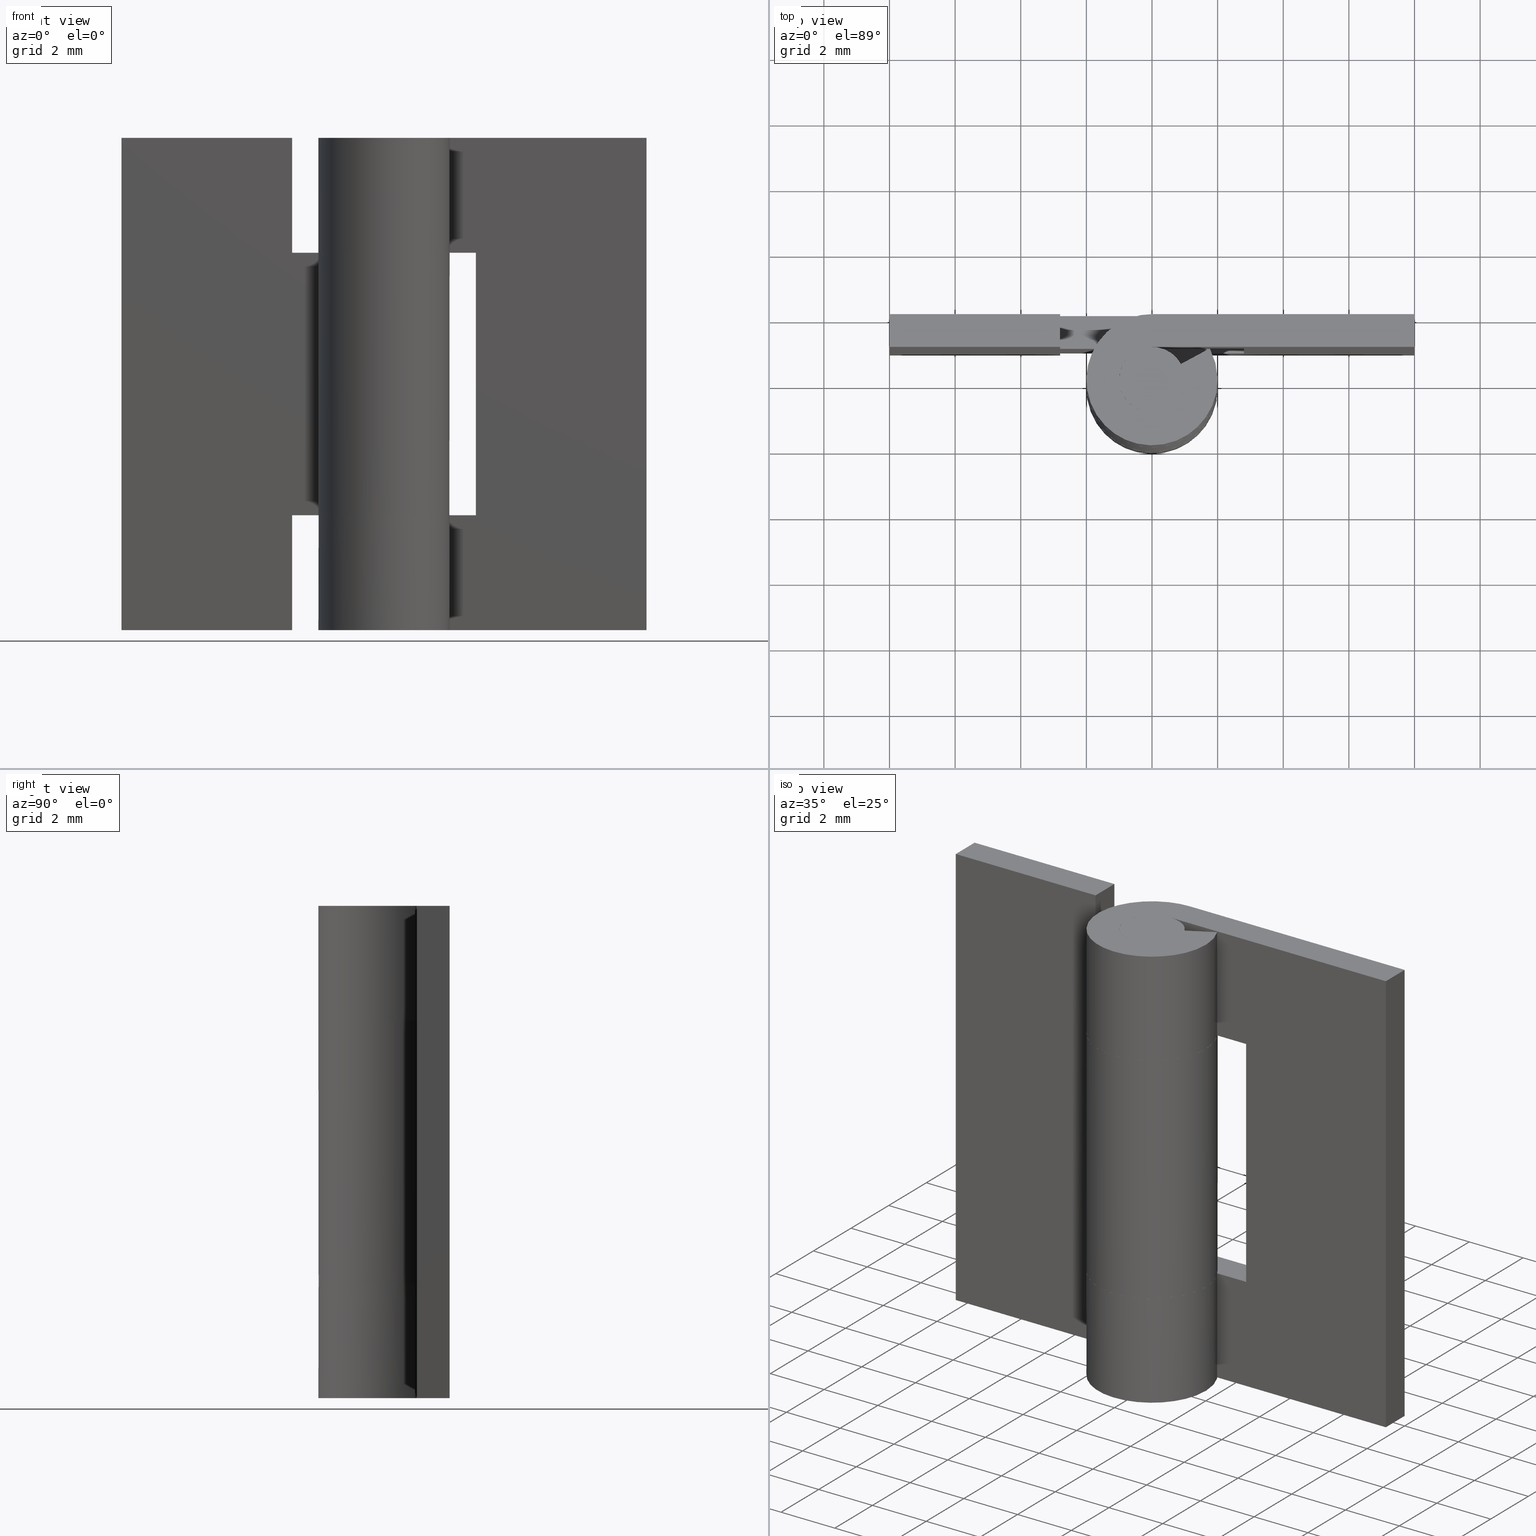
[diagram: canonical four-view strip — front | top / right | iso, engineering-drawing reading convention]
A machine part, canonical four-view strip (front | top / right | iso — engineering-drawing reading convention). The complete STEP part file that produces these views, byte-faithful:
ISO-10303-21;
HEADER;
/****************************************************************
 * Generated by software with PDE/Lib inside                    *
 * PDElib Version 4.4.1-0003, patched  Thursday August 19 11:58 *
 * International Technegroup Inc. (www.iti-oh.com)              *
 ****************************************************************/
FILE_DESCRIPTION((''),'2;1');
FILE_NAME('','2005-04-20T10:57:38',(''),(''),'','CADfix','');
FILE_SCHEMA(('AUTOMOTIVE_DESIGN'));
ENDSEC;
DATA;
#5=APPLICATION_CONTEXT('automotive design');
#6=APPLICATION_PROTOCOL_DEFINITION('Draft International Standard','automotive_design',1998,#5);
#7=PRODUCT_CONTEXT('None',#5,'mechanical');
#8=PRODUCT('hinge piece_B','','None',(#7));
#9=PRODUCT_RELATED_PRODUCT_CATEGORY('part','description',(#8));
#10=PRODUCT_DEFINITION_FORMATION('None','None',#8);
#11=PRODUCT_DEFINITION_CONTEXT('part definition',#5,'design');
#12=PRODUCT_DEFINITION('None','None',#10,#11);
#18=(NAMED_UNIT(*)PLANE_ANGLE_UNIT()SI_UNIT($,.RADIAN.));
#19=DIMENSIONAL_EXPONENTS(0.0,0.0,0.0,0.0,0.0,0.0,0.0);
#20=PLANE_ANGLE_MEASURE_WITH_UNIT(PLANE_ANGLE_MEASURE(0.017453292500000),#18);
#24=(CONVERSION_BASED_UNIT('DEGREE',#20)NAMED_UNIT(#19)PLANE_ANGLE_UNIT());
#28=(NAMED_UNIT(*)SI_UNIT($,.STERADIAN.)SOLID_ANGLE_UNIT());
#32=(LENGTH_UNIT()NAMED_UNIT(*)SI_UNIT(.MILLI.,.METRE.));
#34=UNCERTAINTY_MEASURE_WITH_UNIT(LENGTH_MEASURE(0.001000000000000),#32,'DISTANCE_ACCURACY_VALUE','');
#36=(GEOMETRIC_REPRESENTATION_CONTEXT(3)GLOBAL_UNCERTAINTY_ASSIGNED_CONTEXT((#34))GLOBAL_UNIT_ASSIGNED_CONTEXT((#24,#28,#32))REPRESENTATION_CONTEXT('None','None'));
#37=AXIS2_PLACEMENT_3D('',#38,#39,#40);
#38=CARTESIAN_POINT('',(0.0,0.0,0.0));
#39=DIRECTION('',(0.0,0.0,1.0));
#40=DIRECTION('',(1.0,0.0,0.0));
#41=ADVANCED_BREP_SHAPE_REPRESENTATION('',(#37,#451,#1343),#36);
#42=PRODUCT_DEFINITION_SHAPE('','',#12);
#43=SHAPE_DEFINITION_REPRESENTATION(#42,#41);
#44=CARTESIAN_POINT('',(-2.800003000000000,2.049949998061806,3.674824993216427));
#45=CARTESIAN_POINT('',(-2.800003000000000,2.049949998061806,-0.174825087093641));
#46=CARTESIAN_POINT('',(-2.800003000000000,0.950049975116104,3.674824993216427));
#47=CARTESIAN_POINT('',(-2.800003000000000,0.950049975116104,-0.174825087093641));
#48=B_SPLINE_SURFACE_WITH_KNOTS('',1,1,((#44,#46),(#45,#47)),.UNSPECIFIED.,.F.,.F.,.U.,(2,2),(2,2),(0.0,3.849650080310068),(0.041708334948495,0.958291687403247),.UNSPECIFIED.);
#49=CARTESIAN_POINT('',(-2.800003000000000,1.0,0.0));
#50=VERTEX_POINT('',#49);
#51=CARTESIAN_POINT('',(-2.800003000000000,2.0,0.0));
#52=VERTEX_POINT('',#51);
#53=CARTESIAN_POINT('',(-2.800003000000000,1.0,0.0));
#54=CARTESIAN_POINT('',(-2.800003000000000,2.0,0.0));
#55=QUASI_UNIFORM_CURVE('',1,(#53,#54),.UNSPECIFIED.,.F.,.U.);
#56=EDGE_CURVE('',#50,#52,#55,.T.);
#57=ORIENTED_EDGE('',*,*,#56,.T.);
#58=CARTESIAN_POINT('',(-2.800003000000000,2.0,3.500000000000100));
#59=VERTEX_POINT('',#58);
#60=CARTESIAN_POINT('',(-2.800003000000000,2.0,3.500000000000100));
#61=CARTESIAN_POINT('',(-2.800003000000000,2.0,0.0));
#62=QUASI_UNIFORM_CURVE('',1,(#60,#61),.UNSPECIFIED.,.F.,.U.);
#63=EDGE_CURVE('',#59,#52,#62,.T.);
#64=ORIENTED_EDGE('',*,*,#63,.F.);
#65=CARTESIAN_POINT('',(-2.800003000000000,1.0,3.500000000000100));
#66=VERTEX_POINT('',#65);
#67=CARTESIAN_POINT('',(-2.800003000000000,1.0,3.500000000000100));
#68=CARTESIAN_POINT('',(-2.800003000000000,2.0,3.500000000000100));
#69=QUASI_UNIFORM_CURVE('',1,(#67,#68),.UNSPECIFIED.,.F.,.U.);
#70=EDGE_CURVE('',#66,#59,#69,.T.);
#71=ORIENTED_EDGE('',*,*,#70,.F.);
#72=CARTESIAN_POINT('',(-2.800003000000000,1.0,0.0));
#73=CARTESIAN_POINT('',(-2.800003000000000,1.0,3.500000000000100));
#74=QUASI_UNIFORM_CURVE('',1,(#72,#73),.UNSPECIFIED.,.F.,.U.);
#75=EDGE_CURVE('',#50,#66,#74,.T.);
#76=ORIENTED_EDGE('',*,*,#75,.F.);
#77=EDGE_LOOP('',(#57,#64,#71,#76));
#78=FACE_OUTER_BOUND('',#77,.T.);
#79=ADVANCED_FACE('',(#78),#48,.F.);
#80=CARTESIAN_POINT('',(2.239682554102288,2.199785247893908,3.500000000000100));
#81=CARTESIAN_POINT('',(-3.039759578217170,2.199785247893908,3.500000000000100));
#82=CARTESIAN_POINT('',(2.239682554102288,-2.199490172914328,3.500000000000100));
#83=CARTESIAN_POINT('',(-3.039759578217170,-2.199490172914328,3.500000000000100));
#84=B_SPLINE_SURFACE_WITH_KNOTS('',1,1,((#80,#82),(#81,#83)),.UNSPECIFIED.,.F.,.F.,.U.,(2,2),(2,2),(0.0,5.279442132319458),(0.0,4.399275420808236),.UNSPECIFIED.);
#85=ORIENTED_EDGE('',*,*,#70,.T.);
#86=CARTESIAN_POINT('',(0.0,2.0,3.500000000000100));
#87=VERTEX_POINT('',#86);
#88=CARTESIAN_POINT('',(0.0,2.0,3.500000000000100));
#89=CARTESIAN_POINT('',(-2.800003000000000,2.0,3.500000000000100));
#90=QUASI_UNIFORM_CURVE('',1,(#88,#89),.UNSPECIFIED.,.F.,.U.);
#91=EDGE_CURVE('',#87,#59,#90,.T.);
#92=ORIENTED_EDGE('',*,*,#91,.F.);
#93=CARTESIAN_POINT('',(-1.759971590679805,0.950000000000000,3.500000000000060));
#94=VERTEX_POINT('',#93);
#95=CARTESIAN_POINT('',(0.0,2.0,3.500000000000100));
#96=CARTESIAN_POINT('',(1.523311426391113,2.000000000000000,3.500000000000060));
#97=CARTESIAN_POINT('',(1.928096575312494,0.531454227820452,3.500000000000060));
#98=CARTESIAN_POINT('',(2.332881724233873,-0.937091544359094,3.500000000000060));
#99=CARTESIAN_POINT('',(1.024695076595961,-1.717556403731766,3.500000000000060));
#100=CARTESIAN_POINT('',(-0.283491571041951,-2.498021263104438,3.500000000000060));
#101=CARTESIAN_POINT('',(-1.383518044628767,-1.444256840103794,3.500000000000060));
#102=CARTESIAN_POINT('',(-2.483544518215582,-0.390492417103149,3.500000000000060));
#103=CARTESIAN_POINT('',(-1.759971590679806,0.949999999999997,3.500000000000060));
#111=(BOUNDED_CURVE()B_SPLINE_CURVE(2,(#95,#96,#97,#98,#99,#100,#101,#102,#103),.UNSPECIFIED.,.F.,.U.)B_SPLINE_CURVE_WITH_KNOTS((3,2,2,2,3),(0.0,0.250000000000000,0.500000000000000,0.750000000000000,1.0),.UNSPECIFIED.)CURVE()GEOMETRIC_REPRESENTATION_ITEM()RATIONAL_B_SPLINE_CURVE((1.0,0.795527219493534,1.0,0.795527219493534,1.0,0.795527219493534,1.0,0.795527219493534,1.0))REPRESENTATION_ITEM(''));
#112=EDGE_CURVE('',#87,#94,#111,.T.);
#113=ORIENTED_EDGE('',*,*,#112,.T.);
#114=CARTESIAN_POINT('',(-0.879985795339901,0.475000000000000,3.500000000000060));
#115=VERTEX_POINT('',#114);
#116=CARTESIAN_POINT('',(-0.879985795339901,0.475000000000000,3.500000000000060));
#117=CARTESIAN_POINT('',(-1.759971590679805,0.950000000000000,3.500000000000060));
#118=QUASI_UNIFORM_CURVE('',1,(#116,#117),.UNSPECIFIED.,.F.,.U.);
#119=EDGE_CURVE('',#115,#94,#118,.T.);
#120=ORIENTED_EDGE('',*,*,#119,.F.);
#121=CARTESIAN_POINT('',(-2.220446E-016,1.0,3.500000000000060));
#122=VERTEX_POINT('',#121);
#123=CARTESIAN_POINT('',(0.0,1.0,3.500000000000060));
#124=CARTESIAN_POINT('',(0.761655713195556,1.0,3.500000000000060));
#125=CARTESIAN_POINT('',(0.964048287656247,0.265727113910226,3.500000000000060));
#126=CARTESIAN_POINT('',(1.166440862116937,-0.468545772179548,3.500000000000060));
#127=CARTESIAN_POINT('',(0.512347538297980,-0.858778201865883,3.500000000000060));
#128=CARTESIAN_POINT('',(-0.141745785520977,-1.249010631552219,3.500000000000060));
#129=CARTESIAN_POINT('',(-0.691759022314384,-0.722128420051896,3.500000000000060));
#130=CARTESIAN_POINT('',(-1.241772259107792,-0.195246208551572,3.500000000000060));
#131=CARTESIAN_POINT('',(-0.879985795339902,0.475000000000000,3.500000000000060));
#139=(BOUNDED_CURVE()B_SPLINE_CURVE(2,(#123,#124,#125,#126,#127,#128,#129,#130,#131),.UNSPECIFIED.,.F.,.U.)B_SPLINE_CURVE_WITH_KNOTS((3,2,2,2,3),(0.0,0.250000000000000,0.500000000000000,0.750000000000000,1.0),.UNSPECIFIED.)CURVE()GEOMETRIC_REPRESENTATION_ITEM()RATIONAL_B_SPLINE_CURVE((1.0,0.795527219493534,1.0,0.795527219493534,1.0,0.795527219493534,1.0,0.795527219493534,1.0))REPRESENTATION_ITEM(''));
#140=EDGE_CURVE('',#122,#115,#139,.T.);
#141=ORIENTED_EDGE('',*,*,#140,.F.);
#142=CARTESIAN_POINT('',(-2.800003000000000,1.0,3.500000000000100));
#143=CARTESIAN_POINT('',(-2.220446E-016,1.0,3.500000000000060));
#144=QUASI_UNIFORM_CURVE('',1,(#142,#143),.UNSPECIFIED.,.F.,.U.);
#145=EDGE_CURVE('',#66,#122,#144,.T.);
#146=ORIENTED_EDGE('',*,*,#145,.F.);
#147=EDGE_LOOP('',(#85,#92,#113,#120,#141,#146));
#148=FACE_OUTER_BOUND('',#147,.T.);
#149=ADVANCED_FACE('',(#148),#84,.F.);
#150=CARTESIAN_POINT('',(-2.800003000000000,0.950050001938194,11.325175006783679));
#151=CARTESIAN_POINT('',(-2.800003000000000,0.950050001938194,15.174825087093639));
#152=CARTESIAN_POINT('',(-2.800003000000000,2.049950024883896,11.325175006783679));
#153=CARTESIAN_POINT('',(-2.800003000000000,2.049950024883896,15.174825087093639));
#154=B_SPLINE_SURFACE_WITH_KNOTS('',1,1,((#150,#152),(#151,#153)),.UNSPECIFIED.,.F.,.F.,.U.,(2,2),(2,2),(0.0,3.849650080309958),(0.041708334948495,0.958291687403247),.UNSPECIFIED.);
#155=CARTESIAN_POINT('',(-2.800003000000000,1.0,11.500000000000000));
#156=VERTEX_POINT('',#155);
#157=CARTESIAN_POINT('',(-2.800003000000000,2.0,11.500000000000000));
#158=VERTEX_POINT('',#157);
#159=CARTESIAN_POINT('',(-2.800003000000000,1.0,11.500000000000000));
#160=CARTESIAN_POINT('',(-2.800003000000000,2.0,11.500000000000000));
#161=QUASI_UNIFORM_CURVE('',1,(#159,#160),.UNSPECIFIED.,.F.,.U.);
#162=EDGE_CURVE('',#156,#158,#161,.T.);
#163=ORIENTED_EDGE('',*,*,#162,.T.);
#164=CARTESIAN_POINT('',(-2.800003000000000,2.0,15.0));
#165=VERTEX_POINT('',#164);
#166=CARTESIAN_POINT('',(-2.800003000000000,2.0,11.500000000000000));
#167=CARTESIAN_POINT('',(-2.800003000000000,2.0,15.0));
#168=QUASI_UNIFORM_CURVE('',1,(#166,#167),.UNSPECIFIED.,.F.,.U.);
#169=EDGE_CURVE('',#158,#165,#168,.T.);
#170=ORIENTED_EDGE('',*,*,#169,.T.);
#171=CARTESIAN_POINT('',(-2.800003000000000,1.0,15.0));
#172=VERTEX_POINT('',#171);
#173=CARTESIAN_POINT('',(-2.800003000000000,1.0,15.0));
#174=CARTESIAN_POINT('',(-2.800003000000000,2.0,15.0));
#175=QUASI_UNIFORM_CURVE('',1,(#173,#174),.UNSPECIFIED.,.F.,.U.);
#176=EDGE_CURVE('',#172,#165,#175,.T.);
#177=ORIENTED_EDGE('',*,*,#176,.F.);
#178=CARTESIAN_POINT('',(-2.800003000000000,1.0,11.500000000000000));
#179=CARTESIAN_POINT('',(-2.800003000000000,1.0,15.0));
#180=QUASI_UNIFORM_CURVE('',1,(#178,#179),.UNSPECIFIED.,.F.,.U.);
#181=EDGE_CURVE('',#156,#172,#180,.T.);
#182=ORIENTED_EDGE('',*,*,#181,.F.);
#183=EDGE_LOOP('',(#163,#170,#177,#182));
#184=FACE_OUTER_BOUND('',#183,.T.);
#185=ADVANCED_FACE('',(#184),#154,.F.);
#186=CARTESIAN_POINT('',(2.239682677261474,-2.199489963901460,11.500000000000000));
#187=CARTESIAN_POINT('',(-3.039759584076307,-2.199489963901461,11.500000000000000));
#188=CARTESIAN_POINT('',(2.239682677261474,2.199785350334563,11.500000000000000));
#189=CARTESIAN_POINT('',(-3.039759584076307,2.199785350334563,11.500000000000000));
#190=B_SPLINE_SURFACE_WITH_KNOTS('',1,1,((#186,#188),(#187,#189)),.UNSPECIFIED.,.F.,.F.,.U.,(2,2),(2,2),(0.0,5.279442261337780),(0.0,4.399275314236023),.UNSPECIFIED.);
#191=CARTESIAN_POINT('',(-0.879985795339901,0.475000000000000,11.500000000000000));
#192=VERTEX_POINT('',#191);
#193=CARTESIAN_POINT('',(-2.220446E-016,1.0,11.500000000000000));
#194=VERTEX_POINT('',#193);
#195=CARTESIAN_POINT('',(-0.879985795339902,0.475000000000001,11.500000000000000));
#196=CARTESIAN_POINT('',(-1.241772259107792,-0.195246208551571,11.500000000000000));
#197=CARTESIAN_POINT('',(-0.691759022314385,-0.722128420051895,11.500000000000000));
#198=CARTESIAN_POINT('',(-0.141745785520978,-1.249010631552219,11.500000000000000));
#199=CARTESIAN_POINT('',(0.512347538297979,-0.858778201865884,11.500000000000000));
#200=CARTESIAN_POINT('',(1.166440862116937,-0.468545772179549,11.500000000000000));
#201=CARTESIAN_POINT('',(0.964048287656247,0.265727113910226,11.500000000000000));
#202=CARTESIAN_POINT('',(0.761655713195557,1.0,11.500000000000000));
#203=CARTESIAN_POINT('',(0.0,1.0,11.500000000000000));
#211=(BOUNDED_CURVE()B_SPLINE_CURVE(2,(#195,#196,#197,#198,#199,#200,#201,#202,#203),.UNSPECIFIED.,.F.,.U.)B_SPLINE_CURVE_WITH_KNOTS((3,2,2,2,3),(0.0,0.250000000000000,0.500000000000000,0.750000000000000,1.0),.UNSPECIFIED.)CURVE()GEOMETRIC_REPRESENTATION_ITEM()RATIONAL_B_SPLINE_CURVE((1.0,0.795527219493534,1.0,0.795527219493534,1.0,0.795527219493534,1.0,0.795527219493534,1.0))REPRESENTATION_ITEM(''));
#212=EDGE_CURVE('',#192,#194,#211,.T.);
#213=ORIENTED_EDGE('',*,*,#212,.F.);
#214=CARTESIAN_POINT('',(-1.759971590679805,0.950000000000000,11.500000000000000));
#215=VERTEX_POINT('',#214);
#216=CARTESIAN_POINT('',(-1.759971590679805,0.950000000000000,11.500000000000000));
#217=CARTESIAN_POINT('',(-0.879985795339901,0.475000000000000,11.500000000000000));
#218=QUASI_UNIFORM_CURVE('',1,(#216,#217),.UNSPECIFIED.,.F.,.U.);
#219=EDGE_CURVE('',#215,#192,#218,.T.);
#220=ORIENTED_EDGE('',*,*,#219,.F.);
#221=CARTESIAN_POINT('',(0.0,2.0,11.500000000000000));
#222=VERTEX_POINT('',#221);
#223=CARTESIAN_POINT('',(-1.759971590679804,0.950000000000000,11.500000000000000));
#224=CARTESIAN_POINT('',(-2.483544518215584,-0.390492417103144,11.500000000000002));
#225=CARTESIAN_POINT('',(-1.383518044628769,-1.444256840103792,11.500000000000000));
#226=CARTESIAN_POINT('',(-0.283491571041955,-2.498021263104437,11.500000000000002));
#227=CARTESIAN_POINT('',(1.024695076595959,-1.717556403731767,11.500000000000000));
#228=CARTESIAN_POINT('',(2.332881724233873,-0.937091544359097,11.500000000000002));
#229=CARTESIAN_POINT('',(1.928096575312494,0.531454227820451,11.500000000000000));
#230=CARTESIAN_POINT('',(1.523311426391115,2.000000000000000,11.500000000000002));
#231=CARTESIAN_POINT('',(0.0,2.0,11.500000000000000));
#239=(BOUNDED_CURVE()B_SPLINE_CURVE(2,(#223,#224,#225,#226,#227,#228,#229,#230,#231),.UNSPECIFIED.,.F.,.U.)B_SPLINE_CURVE_WITH_KNOTS((3,2,2,2,3),(0.0,0.250000000000000,0.500000000000000,0.750000000000000,1.0),.UNSPECIFIED.)CURVE()GEOMETRIC_REPRESENTATION_ITEM()RATIONAL_B_SPLINE_CURVE((1.0,0.795527219493534,1.0,0.795527219493534,1.0,0.795527219493534,1.0,0.795527219493534,1.0))REPRESENTATION_ITEM(''));
#240=EDGE_CURVE('',#215,#222,#239,.T.);
#241=ORIENTED_EDGE('',*,*,#240,.T.);
#242=CARTESIAN_POINT('',(0.0,2.0,11.500000000000000));
#243=CARTESIAN_POINT('',(-2.800003000000000,2.0,11.500000000000000));
#244=QUASI_UNIFORM_CURVE('',1,(#242,#243),.UNSPECIFIED.,.F.,.U.);
#245=EDGE_CURVE('',#222,#158,#244,.T.);
#246=ORIENTED_EDGE('',*,*,#245,.T.);
#247=ORIENTED_EDGE('',*,*,#162,.F.);
#248=CARTESIAN_POINT('',(-2.220446E-016,1.0,11.500000000000000));
#249=CARTESIAN_POINT('',(-2.800003000000000,1.0,11.500000000000000));
#250=QUASI_UNIFORM_CURVE('',1,(#248,#249),.UNSPECIFIED.,.F.,.U.);
#251=EDGE_CURVE('',#194,#156,#250,.T.);
#252=ORIENTED_EDGE('',*,*,#251,.F.);
#253=EDGE_LOOP('',(#213,#220,#241,#246,#247,#252));
#254=FACE_OUTER_BOUND('',#253,.T.);
#255=ADVANCED_FACE('',(#254),#190,.F.);
#256=CARTESIAN_POINT('',(-8.259739840071397,0.950050001938194,0.0));
#257=CARTESIAN_POINT('',(-2.540263020453816,0.950050001938194,0.0));
#258=CARTESIAN_POINT('',(-8.259739840071397,2.049950024883896,0.0));
#259=CARTESIAN_POINT('',(-2.540263020453816,2.049950024883896,0.0));
#260=B_SPLINE_SURFACE_WITH_KNOTS('',1,1,((#256,#258),(#257,#259)),.UNSPECIFIED.,.F.,.F.,.U.,(2,2),(2,2),(0.0,5.719476819617581),(0.041708334948495,0.958291687403247),.UNSPECIFIED.);
#261=ORIENTED_EDGE('',*,*,#56,.F.);
#262=CARTESIAN_POINT('',(-8.0,1.0,0.0));
#263=VERTEX_POINT('',#262);
#264=CARTESIAN_POINT('',(-8.0,1.0,0.0));
#265=CARTESIAN_POINT('',(-2.800003000000000,1.0,0.0));
#266=QUASI_UNIFORM_CURVE('',1,(#264,#265),.UNSPECIFIED.,.F.,.U.);
#267=EDGE_CURVE('',#263,#50,#266,.T.);
#268=ORIENTED_EDGE('',*,*,#267,.F.);
#269=CARTESIAN_POINT('',(-8.0,2.0,0.0));
#270=VERTEX_POINT('',#269);
#271=CARTESIAN_POINT('',(-8.0,2.0,0.0));
#272=CARTESIAN_POINT('',(-8.0,1.0,0.0));
#273=QUASI_UNIFORM_CURVE('',1,(#271,#272),.UNSPECIFIED.,.F.,.U.);
#274=EDGE_CURVE('',#270,#263,#273,.T.);
#275=ORIENTED_EDGE('',*,*,#274,.F.);
#276=CARTESIAN_POINT('',(-2.800003000000000,2.0,0.0));
#277=CARTESIAN_POINT('',(-8.0,2.0,0.0));
#278=QUASI_UNIFORM_CURVE('',1,(#276,#277),.UNSPECIFIED.,.F.,.U.);
#279=EDGE_CURVE('',#52,#270,#278,.T.);
#280=ORIENTED_EDGE('',*,*,#279,.F.);
#281=EDGE_LOOP('',(#261,#268,#275,#280));
#282=FACE_OUTER_BOUND('',#281,.T.);
#283=ADVANCED_FACE('',(#282),#260,.F.);
#284=CARTESIAN_POINT('',(-8.259739840071397,0.950050001938194,15.0));
#285=CARTESIAN_POINT('',(-2.540263020453816,0.950050001938194,15.0));
#286=CARTESIAN_POINT('',(-8.259739840071397,2.049950024883896,15.0));
#287=CARTESIAN_POINT('',(-2.540263020453816,2.049950024883896,15.0));
#288=B_SPLINE_SURFACE_WITH_KNOTS('',1,1,((#284,#286),(#285,#287)),.UNSPECIFIED.,.F.,.F.,.U.,(2,2),(2,2),(0.0,5.719476819617581),(0.041708334948495,0.958291687403247),.UNSPECIFIED.);
#289=CARTESIAN_POINT('',(-8.0,1.0,15.0));
#290=VERTEX_POINT('',#289);
#291=CARTESIAN_POINT('',(-8.0,1.0,15.0));
#292=CARTESIAN_POINT('',(-2.800003000000000,1.0,15.0));
#293=QUASI_UNIFORM_CURVE('',1,(#291,#292),.UNSPECIFIED.,.F.,.U.);
#294=EDGE_CURVE('',#290,#172,#293,.T.);
#295=ORIENTED_EDGE('',*,*,#294,.T.);
#296=ORIENTED_EDGE('',*,*,#176,.T.);
#297=CARTESIAN_POINT('',(-8.0,2.0,15.0));
#298=VERTEX_POINT('',#297);
#299=CARTESIAN_POINT('',(-2.800003000000000,2.0,15.0));
#300=CARTESIAN_POINT('',(-8.0,2.0,15.0));
#301=QUASI_UNIFORM_CURVE('',1,(#299,#300),.UNSPECIFIED.,.F.,.U.);
#302=EDGE_CURVE('',#165,#298,#301,.T.);
#303=ORIENTED_EDGE('',*,*,#302,.T.);
#304=CARTESIAN_POINT('',(-8.0,2.0,15.0));
#305=CARTESIAN_POINT('',(-8.0,1.0,15.0));
#306=QUASI_UNIFORM_CURVE('',1,(#304,#305),.UNSPECIFIED.,.F.,.U.);
#307=EDGE_CURVE('',#298,#290,#306,.T.);
#308=ORIENTED_EDGE('',*,*,#307,.T.);
#309=EDGE_LOOP('',(#295,#296,#303,#308));
#310=FACE_OUTER_BOUND('',#309,.T.);
#311=ADVANCED_FACE('',(#310),#288,.T.);
#312=CARTESIAN_POINT('',(-1.723258320883051,1.015076725921408,11.699999999999999));
#313=CARTESIAN_POINT('',(-1.723258320883051,1.015076725921408,3.295000000000060));
#314=CARTESIAN_POINT('',(-2.969344769301742,-1.100358281051034,11.700000000000001));
#315=CARTESIAN_POINT('',(-2.969344769301742,-1.100358281051034,3.295000000000061));
#316=CARTESIAN_POINT('',(-0.645632757753657,-1.892923226682848,11.699999999999999));
#317=CARTESIAN_POINT('',(-0.645632757753657,-1.892923226682848,3.295000000000060));
#318=CARTESIAN_POINT('',(1.678079253794428,-2.685488172314661,11.700000000000001));
#319=CARTESIAN_POINT('',(1.678079253794428,-2.685488172314661,3.295000000000061));
#320=CARTESIAN_POINT('',(1.984374898665018,-0.249512046899941,11.699999999999999));
#321=CARTESIAN_POINT('',(1.984374898665018,-0.249512046899941,3.295000000000060));
#322=CARTESIAN_POINT('',(2.290670543535608,2.186464078514781,11.700000000000001));
#323=CARTESIAN_POINT('',(2.290670543535608,2.186464078514781,3.295000000000061));
#324=CARTESIAN_POINT('',(-0.156918191455691,1.993834667466256,11.699999999999999));
#325=CARTESIAN_POINT('',(-0.156918191455691,1.993834667466256,3.295000000000060));
#333=(BOUNDED_SURFACE()B_SPLINE_SURFACE(1,2,((#312,#314,#316,#318,#320,#322,#324),(#313,#315,#317,#319,#321,#323,#325)),.UNSPECIFIED.,.F.,.F.,.U.)B_SPLINE_SURFACE_WITH_KNOTS((2,2),(3,2,2,3),(0.0,8.404999999999941),(0.0,3.801531476131832,7.603062952263665,11.404594428395500),.UNSPECIFIED.)GEOMETRIC_REPRESENTATION_ITEM()RATIONAL_B_SPLINE_SURFACE(((1.0,0.631578351302498,1.0,0.631578351302498,1.0,0.631578351302498,1.0),(1.0,0.631578351302498,1.0,0.631578351302498,1.0,0.631578351302498,1.0)))REPRESENTATION_ITEM('')SURFACE());
#334=CARTESIAN_POINT('',(-1.759971590679805,0.950000000000000,11.500000000000000));
#335=CARTESIAN_POINT('',(-1.759971590679805,0.950000000000000,3.500000000000060));
#336=QUASI_UNIFORM_CURVE('',1,(#334,#335),.UNSPECIFIED.,.F.,.U.);
#337=EDGE_CURVE('',#215,#94,#336,.T.);
#338=ORIENTED_EDGE('',*,*,#337,.T.);
#339=ORIENTED_EDGE('',*,*,#112,.F.);
#340=CARTESIAN_POINT('',(0.0,2.0,11.500000000000000));
#341=CARTESIAN_POINT('',(0.0,2.0,3.500000000000100));
#342=QUASI_UNIFORM_CURVE('',1,(#340,#341),.UNSPECIFIED.,.F.,.U.);
#343=EDGE_CURVE('',#222,#87,#342,.T.);
#344=ORIENTED_EDGE('',*,*,#343,.F.);
#345=ORIENTED_EDGE('',*,*,#240,.F.);
#346=EDGE_LOOP('',(#338,#339,#344,#345));
#347=FACE_OUTER_BOUND('',#346,.T.);
#348=ADVANCED_FACE('',(#347),#333,.T.);
#349=CARTESIAN_POINT('',(-1.803926895972804,0.973726257997279,3.100400015505615));
#350=CARTESIAN_POINT('',(-0.836030482179216,0.451273737755891,3.100400015505615));
#351=CARTESIAN_POINT('',(-1.803926895972804,0.973726257997279,11.899600199071170));
#352=CARTESIAN_POINT('',(-0.836030482179216,0.451273737755891,11.899600199071170));
#353=B_SPLINE_SURFACE_WITH_KNOTS('',1,1,((#349,#351),(#350,#352)),.UNSPECIFIED.,.F.,.F.,.U.,(2,2),(2,2),(0.041708319303021,0.958291688147560),(0.0,8.799200183565555),.UNSPECIFIED.);
#354=CARTESIAN_POINT('',(-0.879985795339901,0.475000000000000,11.500000000000000));
#355=CARTESIAN_POINT('',(-0.879985795339901,0.475000000000000,3.500000000000060));
#356=QUASI_UNIFORM_CURVE('',1,(#354,#355),.UNSPECIFIED.,.F.,.U.);
#357=EDGE_CURVE('',#192,#115,#356,.T.);
#358=ORIENTED_EDGE('',*,*,#357,.T.);
#359=ORIENTED_EDGE('',*,*,#119,.T.);
#360=ORIENTED_EDGE('',*,*,#337,.F.);
#361=ORIENTED_EDGE('',*,*,#219,.T.);
#362=EDGE_LOOP('',(#358,#359,#360,#361));
#363=FACE_OUTER_BOUND('',#362,.T.);
#364=ADVANCED_FACE('',(#363),#353,.F.);
#365=CARTESIAN_POINT('',(-0.861629160441525,0.507538362960704,11.699999999999999));
#366=CARTESIAN_POINT('',(-0.861629160441525,0.507538362960704,3.295000000000060));
#367=CARTESIAN_POINT('',(-1.484672384650871,-0.550179140525518,11.700000000000001));
#368=CARTESIAN_POINT('',(-1.484672384650871,-0.550179140525518,3.295000000000061));
#369=CARTESIAN_POINT('',(-0.322816378876828,-0.946461613341424,11.699999999999999));
#370=CARTESIAN_POINT('',(-0.322816378876828,-0.946461613341424,3.295000000000060));
#371=CARTESIAN_POINT('',(0.839039626897214,-1.342744086157331,11.700000000000001));
#372=CARTESIAN_POINT('',(0.839039626897214,-1.342744086157331,3.295000000000061));
#373=CARTESIAN_POINT('',(0.992187449332509,-0.124756023449970,11.699999999999999));
#374=CARTESIAN_POINT('',(0.992187449332509,-0.124756023449970,3.295000000000060));
#375=CARTESIAN_POINT('',(1.145335271767804,1.093232039257391,11.700000000000001));
#376=CARTESIAN_POINT('',(1.145335271767804,1.093232039257391,3.295000000000061));
#377=CARTESIAN_POINT('',(-0.078459095727846,0.996917333733128,11.699999999999999));
#378=CARTESIAN_POINT('',(-0.078459095727846,0.996917333733128,3.295000000000060));
#386=(BOUNDED_SURFACE()B_SPLINE_SURFACE(1,2,((#365,#367,#369,#371,#373,#375,#377),(#366,#368,#370,#372,#374,#376,#378)),.UNSPECIFIED.,.F.,.F.,.U.)B_SPLINE_SURFACE_WITH_KNOTS((2,2),(3,2,2,3),(0.0,8.404999999999941),(0.0,1.0,2.0,3.0),.UNSPECIFIED.)GEOMETRIC_REPRESENTATION_ITEM()RATIONAL_B_SPLINE_SURFACE(((1.0,0.631578351302498,1.0,0.631578351302498,1.0,0.631578351302498,1.0),(1.0,0.631578351302498,1.0,0.631578351302498,1.0,0.631578351302498,1.0)))REPRESENTATION_ITEM('')SURFACE());
#387=CARTESIAN_POINT('',(-2.220446E-016,1.0,11.500000000000000));
#388=CARTESIAN_POINT('',(-2.220446E-016,1.0,3.500000000000060));
#389=QUASI_UNIFORM_CURVE('',1,(#387,#388),.UNSPECIFIED.,.F.,.U.);
#390=EDGE_CURVE('',#194,#122,#389,.T.);
#391=ORIENTED_EDGE('',*,*,#390,.T.);
#392=ORIENTED_EDGE('',*,*,#140,.T.);
#393=ORIENTED_EDGE('',*,*,#357,.F.);
#394=ORIENTED_EDGE('',*,*,#212,.T.);
#395=EDGE_LOOP('',(#391,#392,#393,#394));
#396=FACE_OUTER_BOUND('',#395,.T.);
#397=ADVANCED_FACE('',(#396),#386,.F.);
#398=CARTESIAN_POINT('',(-8.399599984494447,1.0,-0.749249970927090));
#399=CARTESIAN_POINT('',(-8.399599984494447,1.0,15.749250373258439));
#400=CARTESIAN_POINT('',(0.399600199071168,1.0,-0.749249970927090));
#401=CARTESIAN_POINT('',(0.399600199071168,1.0,15.749250373258439));
#402=B_SPLINE_SURFACE_WITH_KNOTS('',1,1,((#398,#400),(#399,#401)),.UNSPECIFIED.,.F.,.F.,.U.,(2,2),(2,2),(0.0,16.498500344185530),(0.0,8.799200183565615),.UNSPECIFIED.);
#403=ORIENTED_EDGE('',*,*,#75,.T.);
#404=ORIENTED_EDGE('',*,*,#145,.T.);
#405=ORIENTED_EDGE('',*,*,#390,.F.);
#406=ORIENTED_EDGE('',*,*,#251,.T.);
#407=ORIENTED_EDGE('',*,*,#181,.T.);
#408=ORIENTED_EDGE('',*,*,#294,.F.);
#409=CARTESIAN_POINT('',(-8.0,1.0,15.0));
#410=CARTESIAN_POINT('',(-8.0,1.0,0.0));
#411=QUASI_UNIFORM_CURVE('',1,(#409,#410),.UNSPECIFIED.,.F.,.U.);
#412=EDGE_CURVE('',#290,#263,#411,.T.);
#413=ORIENTED_EDGE('',*,*,#412,.T.);
#414=ORIENTED_EDGE('',*,*,#267,.T.);
#415=EDGE_LOOP('',(#403,#404,#405,#406,#407,#408,#413,#414));
#416=FACE_OUTER_BOUND('',#415,.T.);
#417=ADVANCED_FACE('',(#416),#402,.F.);
#418=CARTESIAN_POINT('',(-8.0,0.950050001938194,15.749249970927091));
#419=CARTESIAN_POINT('',(-8.0,0.950050001938194,-0.749250373258442));
#420=CARTESIAN_POINT('',(-8.0,2.049950024883896,15.749249970927091));
#421=CARTESIAN_POINT('',(-8.0,2.049950024883896,-0.749250373258442));
#422=B_SPLINE_SURFACE_WITH_KNOTS('',1,1,((#418,#420),(#419,#421)),.UNSPECIFIED.,.F.,.F.,.U.,(2,2),(2,2),(0.0,16.498500344185530),(0.041708334948495,0.958291687403247),.UNSPECIFIED.);
#423=ORIENTED_EDGE('',*,*,#274,.T.);
#424=ORIENTED_EDGE('',*,*,#412,.F.);
#425=ORIENTED_EDGE('',*,*,#307,.F.);
#426=CARTESIAN_POINT('',(-8.0,2.0,15.0));
#427=CARTESIAN_POINT('',(-8.0,2.0,0.0));
#428=QUASI_UNIFORM_CURVE('',1,(#426,#427),.UNSPECIFIED.,.F.,.U.);
#429=EDGE_CURVE('',#298,#270,#428,.T.);
#430=ORIENTED_EDGE('',*,*,#429,.T.);
#431=EDGE_LOOP('',(#423,#424,#425,#430));
#432=FACE_OUTER_BOUND('',#431,.T.);
#433=ADVANCED_FACE('',(#432),#422,.F.);
#434=CARTESIAN_POINT('',(-8.399599984494447,2.0,15.749249970927091));
#435=CARTESIAN_POINT('',(-8.399599984494447,2.0,-0.749250373258442));
#436=CARTESIAN_POINT('',(0.399600199071169,2.0,15.749249970927091));
#437=CARTESIAN_POINT('',(0.399600199071169,2.0,-0.749250373258442));
#438=B_SPLINE_SURFACE_WITH_KNOTS('',1,1,((#434,#436),(#435,#437)),.UNSPECIFIED.,.F.,.F.,.U.,(2,2),(2,2),(0.0,16.498500344185530),(0.0,8.799200183565615),.UNSPECIFIED.);
#439=ORIENTED_EDGE('',*,*,#343,.T.);
#440=ORIENTED_EDGE('',*,*,#91,.T.);
#441=ORIENTED_EDGE('',*,*,#63,.T.);
#442=ORIENTED_EDGE('',*,*,#279,.T.);
#443=ORIENTED_EDGE('',*,*,#429,.F.);
#444=ORIENTED_EDGE('',*,*,#302,.F.);
#445=ORIENTED_EDGE('',*,*,#169,.F.);
#446=ORIENTED_EDGE('',*,*,#245,.F.);
#447=EDGE_LOOP('',(#439,#440,#441,#442,#443,#444,#445,#446));
#448=FACE_OUTER_BOUND('',#447,.T.);
#449=ADVANCED_FACE('',(#448),#438,.F.);
#450=CLOSED_SHELL('',(#79,#149,#185,#255,#283,#311,#348,#364,#397,#417,#433,#449));
#451=MANIFOLD_SOLID_BREP('hinge piece_B',#450);
#452=APPLICATION_CONTEXT('automotive design');
#453=APPLICATION_PROTOCOL_DEFINITION('Draft International Standard','automotive_design',1998,#452);
#454=PRODUCT_CONTEXT('None',#452,'mechanical');
#455=PRODUCT('hinge piece_A','','None',(#454));
#456=PRODUCT_RELATED_PRODUCT_CATEGORY('part','description',(#455));
#457=PRODUCT_DEFINITION_FORMATION('None','None',#455);
#458=PRODUCT_DEFINITION_CONTEXT('part definition',#452,'design');
#459=PRODUCT_DEFINITION('None','None',#457,#458);
#465=(NAMED_UNIT(*)PLANE_ANGLE_UNIT()SI_UNIT($,.RADIAN.));
#466=DIMENSIONAL_EXPONENTS(0.0,0.0,0.0,0.0,0.0,0.0,0.0);
#467=PLANE_ANGLE_MEASURE_WITH_UNIT(PLANE_ANGLE_MEASURE(0.017453292500000),#465);
#471=(CONVERSION_BASED_UNIT('DEGREE',#467)NAMED_UNIT(#466)PLANE_ANGLE_UNIT());
#475=(NAMED_UNIT(*)SI_UNIT($,.STERADIAN.)SOLID_ANGLE_UNIT());
#479=(LENGTH_UNIT()NAMED_UNIT(*)SI_UNIT(.MILLI.,.METRE.));
#481=UNCERTAINTY_MEASURE_WITH_UNIT(LENGTH_MEASURE(0.001000000000000),#479,'DISTANCE_ACCURACY_VALUE','');
#483=(GEOMETRIC_REPRESENTATION_CONTEXT(3)GLOBAL_UNCERTAINTY_ASSIGNED_CONTEXT((#481))GLOBAL_UNIT_ASSIGNED_CONTEXT((#471,#475,#479))REPRESENTATION_CONTEXT('None','None'));
#484=AXIS2_PLACEMENT_3D('',#485,#486,#487);
#485=CARTESIAN_POINT('',(0.0,0.0,0.0));
#486=DIRECTION('',(0.0,0.0,1.0));
#487=DIRECTION('',(1.0,0.0,0.0));
#488=ADVANCED_BREP_SHAPE_REPRESENTATION('',(#484,#1048,#1359),#483);
#489=PRODUCT_DEFINITION_SHAPE('','',#459);
#490=SHAPE_DEFINITION_REPRESENTATION(#489,#488);
#491=CARTESIAN_POINT('',(2.800003000000000,0.950050001938194,11.899599984494451));
#492=CARTESIAN_POINT('',(2.800003000000000,0.950050001938194,3.100399800928831));
#493=CARTESIAN_POINT('',(2.800003000000000,2.049950024883896,11.899599984494451));
#494=CARTESIAN_POINT('',(2.800003000000000,2.049950024883896,3.100399800928831));
#495=B_SPLINE_SURFACE_WITH_KNOTS('',1,1,((#491,#493),(#492,#494)),.UNSPECIFIED.,.F.,.F.,.U.,(2,2),(2,2),(0.0,8.799200183565617),(0.041708334948495,0.958291687403247),.UNSPECIFIED.);
#496=CARTESIAN_POINT('',(2.800003000000000,1.0,3.500000000000000));
#497=VERTEX_POINT('',#496);
#498=CARTESIAN_POINT('',(2.800003000000000,1.0,11.500000000000000));
#499=VERTEX_POINT('',#498);
#500=CARTESIAN_POINT('',(2.800003000000000,1.0,3.500000000000000));
#501=CARTESIAN_POINT('',(2.800003000000000,1.0,11.500000000000000));
#502=QUASI_UNIFORM_CURVE('',1,(#500,#501),.UNSPECIFIED.,.F.,.U.);
#503=EDGE_CURVE('',#497,#499,#502,.T.);
#504=ORIENTED_EDGE('',*,*,#503,.T.);
#505=CARTESIAN_POINT('',(2.800003000000000,2.0,11.500000000000000));
#506=VERTEX_POINT('',#505);
#507=CARTESIAN_POINT('',(2.800003000000000,1.0,11.500000000000000));
#508=CARTESIAN_POINT('',(2.800003000000000,2.0,11.500000000000000));
#509=QUASI_UNIFORM_CURVE('',1,(#507,#508),.UNSPECIFIED.,.F.,.U.);
#510=EDGE_CURVE('',#499,#506,#509,.T.);
#511=ORIENTED_EDGE('',*,*,#510,.T.);
#512=CARTESIAN_POINT('',(2.800003000000000,2.0,3.500000000000000));
#513=VERTEX_POINT('',#512);
#514=CARTESIAN_POINT('',(2.800003000000000,2.0,11.500000000000000));
#515=CARTESIAN_POINT('',(2.800003000000000,2.0,3.500000000000000));
#516=QUASI_UNIFORM_CURVE('',1,(#514,#515),.UNSPECIFIED.,.F.,.U.);
#517=EDGE_CURVE('',#506,#513,#516,.T.);
#518=ORIENTED_EDGE('',*,*,#517,.T.);
#519=CARTESIAN_POINT('',(2.800003000000000,1.0,3.500000000000000));
#520=CARTESIAN_POINT('',(2.800003000000000,2.0,3.500000000000000));
#521=QUASI_UNIFORM_CURVE('',1,(#519,#520),.UNSPECIFIED.,.F.,.U.);
#522=EDGE_CURVE('',#497,#513,#521,.T.);
#523=ORIENTED_EDGE('',*,*,#522,.F.);
#524=EDGE_LOOP('',(#504,#511,#518,#523));
#525=FACE_OUTER_BOUND('',#524,.T.);
#526=ADVANCED_FACE('',(#525),#495,.F.);
#527=CARTESIAN_POINT('',(-2.239682677261474,-2.199489963901460,11.500000000000000));
#528=CARTESIAN_POINT('',(3.039759584076307,-2.199489963901461,11.500000000000000));
#529=CARTESIAN_POINT('',(-2.239682677261474,2.199785350334563,11.500000000000000));
#530=CARTESIAN_POINT('',(3.039759584076307,2.199785350334563,11.500000000000000));
#531=B_SPLINE_SURFACE_WITH_KNOTS('',1,1,((#527,#529),(#528,#530)),.UNSPECIFIED.,.F.,.F.,.U.,(2,2),(2,2),(0.0,5.279442261337780),(0.0,4.399275314236023),.UNSPECIFIED.);
#532=CARTESIAN_POINT('',(1.759971590679805,0.950000000000000,11.500000000000000));
#533=VERTEX_POINT('',#532);
#534=CARTESIAN_POINT('',(0.0,2.0,11.500000000000000));
#535=VERTEX_POINT('',#534);
#536=CARTESIAN_POINT('',(1.759971590679804,0.950000000000000,11.500000000000000));
#537=CARTESIAN_POINT('',(2.483544518215584,-0.390492417103144,11.500000000000002));
#538=CARTESIAN_POINT('',(1.383518044628769,-1.444256840103792,11.500000000000000));
#539=CARTESIAN_POINT('',(0.283491571041955,-2.498021263104437,11.500000000000002));
#540=CARTESIAN_POINT('',(-1.024695076595959,-1.717556403731767,11.500000000000000));
#541=CARTESIAN_POINT('',(-2.332881724233873,-0.937091544359097,11.500000000000002));
#542=CARTESIAN_POINT('',(-1.928096575312494,0.531454227820451,11.500000000000000));
#543=CARTESIAN_POINT('',(-1.523311426391115,2.000000000000000,11.500000000000002));
#544=CARTESIAN_POINT('',(0.0,2.0,11.500000000000000));
#552=(BOUNDED_CURVE()B_SPLINE_CURVE(2,(#536,#537,#538,#539,#540,#541,#542,#543,#544),.UNSPECIFIED.,.F.,.U.)B_SPLINE_CURVE_WITH_KNOTS((3,2,2,2,3),(0.0,0.250000000000000,0.500000000000000,0.750000000000000,1.0),.UNSPECIFIED.)CURVE()GEOMETRIC_REPRESENTATION_ITEM()RATIONAL_B_SPLINE_CURVE((1.0,0.795527219493534,1.0,0.795527219493534,1.0,0.795527219493534,1.0,0.795527219493534,1.0))REPRESENTATION_ITEM(''));
#553=EDGE_CURVE('',#533,#535,#552,.T.);
#554=ORIENTED_EDGE('',*,*,#553,.T.);
#555=CARTESIAN_POINT('',(0.0,2.0,11.500000000000000));
#556=CARTESIAN_POINT('',(2.800003000000000,2.0,11.500000000000000));
#557=QUASI_UNIFORM_CURVE('',1,(#555,#556),.UNSPECIFIED.,.F.,.U.);
#558=EDGE_CURVE('',#535,#506,#557,.T.);
#559=ORIENTED_EDGE('',*,*,#558,.T.);
#560=ORIENTED_EDGE('',*,*,#510,.F.);
#561=CARTESIAN_POINT('',(0.0,1.0,11.500000000000000));
#562=VERTEX_POINT('',#561);
#563=CARTESIAN_POINT('',(2.800003000000000,1.0,11.500000000000000));
#564=CARTESIAN_POINT('',(0.0,1.0,11.500000000000000));
#565=QUASI_UNIFORM_CURVE('',1,(#563,#564),.UNSPECIFIED.,.F.,.U.);
#566=EDGE_CURVE('',#499,#562,#565,.T.);
#567=ORIENTED_EDGE('',*,*,#566,.T.);
#568=CARTESIAN_POINT('',(0.879985795339902,0.475000000000000,11.500000000000000));
#569=VERTEX_POINT('',#568);
#570=CARTESIAN_POINT('',(0.879985795339902,0.475000000000000,11.500000000000000));
#571=CARTESIAN_POINT('',(1.241772259107792,-0.195246208551572,11.500000000000002));
#572=CARTESIAN_POINT('',(0.691759022314384,-0.722128420051896,11.500000000000000));
#573=CARTESIAN_POINT('',(0.141745785520978,-1.249010631552219,11.500000000000002));
#574=CARTESIAN_POINT('',(-0.512347538297979,-0.858778201865884,11.500000000000000));
#575=CARTESIAN_POINT('',(-1.166440862116937,-0.468545772179548,11.500000000000002));
#576=CARTESIAN_POINT('',(-0.964048287656247,0.265727113910226,11.500000000000000));
#577=CARTESIAN_POINT('',(-0.761655713195557,1.0,11.500000000000002));
#578=CARTESIAN_POINT('',(0.0,1.0,11.500000000000000));
#586=(BOUNDED_CURVE()B_SPLINE_CURVE(2,(#570,#571,#572,#573,#574,#575,#576,#577,#578),.UNSPECIFIED.,.F.,.U.)B_SPLINE_CURVE_WITH_KNOTS((3,2,2,2,3),(0.0,0.250000000000000,0.500000000000000,0.750000000000000,1.0),.UNSPECIFIED.)CURVE()GEOMETRIC_REPRESENTATION_ITEM()RATIONAL_B_SPLINE_CURVE((1.0,0.795527219493534,1.0,0.795527219493534,1.0,0.795527219493534,1.0,0.795527219493534,1.0))REPRESENTATION_ITEM(''));
#587=EDGE_CURVE('',#569,#562,#586,.T.);
#588=ORIENTED_EDGE('',*,*,#587,.F.);
#589=CARTESIAN_POINT('',(0.879985795339902,0.475000000000000,11.500000000000000));
#590=CARTESIAN_POINT('',(1.759971590679805,0.950000000000000,11.500000000000000));
#591=QUASI_UNIFORM_CURVE('',1,(#589,#590),.UNSPECIFIED.,.F.,.U.);
#592=EDGE_CURVE('',#569,#533,#591,.T.);
#593=ORIENTED_EDGE('',*,*,#592,.T.);
#594=EDGE_LOOP('',(#554,#559,#560,#567,#588,#593));
#595=FACE_OUTER_BOUND('',#594,.T.);
#596=ADVANCED_FACE('',(#595),#531,.F.);
#597=CARTESIAN_POINT('',(3.039759524584510,-2.199490103180252,3.500000000000000));
#598=CARTESIAN_POINT('',(-2.239682371725495,-2.199490103180252,3.500000000000000));
#599=CARTESIAN_POINT('',(3.039759524584510,2.199785356960570,3.500000000000000));
#600=CARTESIAN_POINT('',(-2.239682371725495,2.199785356960570,3.500000000000000));
#601=B_SPLINE_SURFACE_WITH_KNOTS('',1,1,((#597,#599),(#598,#600)),.UNSPECIFIED.,.F.,.F.,.U.,(2,2),(2,2),(0.0,5.279441896310005),(0.0,4.399275460140823),.UNSPECIFIED.);
#602=CARTESIAN_POINT('',(0.0,2.0,3.500000000000000));
#603=VERTEX_POINT('',#602);
#604=CARTESIAN_POINT('',(1.759971590679805,0.950000000000000,3.499999999999950));
#605=VERTEX_POINT('',#604);
#606=CARTESIAN_POINT('',(0.0,2.0,3.500000000000000));
#607=CARTESIAN_POINT('',(-1.523311426391113,2.000000000000000,3.499999999999951));
#608=CARTESIAN_POINT('',(-1.928096575312494,0.531454227820452,3.499999999999950));
#609=CARTESIAN_POINT('',(-2.332881724233873,-0.937091544359094,3.499999999999951));
#610=CARTESIAN_POINT('',(-1.024695076595961,-1.717556403731766,3.499999999999950));
#611=CARTESIAN_POINT('',(0.283491571041951,-2.498021263104438,3.499999999999951));
#612=CARTESIAN_POINT('',(1.383518044628767,-1.444256840103794,3.499999999999950));
#613=CARTESIAN_POINT('',(2.483544518215582,-0.390492417103149,3.499999999999951));
#614=CARTESIAN_POINT('',(1.759971590679806,0.949999999999997,3.499999999999950));
#622=(BOUNDED_CURVE()B_SPLINE_CURVE(2,(#606,#607,#608,#609,#610,#611,#612,#613,#614),.UNSPECIFIED.,.F.,.U.)B_SPLINE_CURVE_WITH_KNOTS((3,2,2,2,3),(0.0,0.250000000000000,0.500000000000000,0.750000000000000,1.0),.UNSPECIFIED.)CURVE()GEOMETRIC_REPRESENTATION_ITEM()RATIONAL_B_SPLINE_CURVE((1.0,0.795527219493534,1.0,0.795527219493534,1.0,0.795527219493534,1.0,0.795527219493534,1.0))REPRESENTATION_ITEM(''));
#623=EDGE_CURVE('',#603,#605,#622,.T.);
#624=ORIENTED_EDGE('',*,*,#623,.T.);
#625=CARTESIAN_POINT('',(0.879985795339902,0.475000000000000,3.499999999999950));
#626=VERTEX_POINT('',#625);
#627=CARTESIAN_POINT('',(1.759971590679805,0.950000000000000,3.499999999999950));
#628=CARTESIAN_POINT('',(0.879985795339902,0.475000000000000,3.499999999999950));
#629=QUASI_UNIFORM_CURVE('',1,(#627,#628),.UNSPECIFIED.,.F.,.U.);
#630=EDGE_CURVE('',#605,#626,#629,.T.);
#631=ORIENTED_EDGE('',*,*,#630,.T.);
#632=CARTESIAN_POINT('',(0.0,1.0,3.499999999999950));
#633=VERTEX_POINT('',#632);
#634=CARTESIAN_POINT('',(0.0,1.0,3.499999999999950));
#635=CARTESIAN_POINT('',(-0.761655713195556,1.0,3.499999999999951));
#636=CARTESIAN_POINT('',(-0.964048287656247,0.265727113910226,3.499999999999950));
#637=CARTESIAN_POINT('',(-1.166440862116937,-0.468545772179547,3.499999999999951));
#638=CARTESIAN_POINT('',(-0.512347538297981,-0.858778201865883,3.499999999999950));
#639=CARTESIAN_POINT('',(0.141745785520976,-1.249010631552219,3.499999999999951));
#640=CARTESIAN_POINT('',(0.691759022314383,-0.722128420051897,3.499999999999950));
#641=CARTESIAN_POINT('',(1.241772259107791,-0.195246208551574,3.499999999999951));
#642=CARTESIAN_POINT('',(0.879985795339903,0.474999999999999,3.499999999999950));
#650=(BOUNDED_CURVE()B_SPLINE_CURVE(2,(#634,#635,#636,#637,#638,#639,#640,#641,#642),.UNSPECIFIED.,.F.,.U.)B_SPLINE_CURVE_WITH_KNOTS((3,2,2,2,3),(0.0,0.250000000000000,0.500000000000000,0.750000000000000,1.0),.UNSPECIFIED.)CURVE()GEOMETRIC_REPRESENTATION_ITEM()RATIONAL_B_SPLINE_CURVE((1.0,0.795527219493534,1.0,0.795527219493534,1.0,0.795527219493534,1.0,0.795527219493534,1.0))REPRESENTATION_ITEM(''));
#651=EDGE_CURVE('',#633,#626,#650,.T.);
#652=ORIENTED_EDGE('',*,*,#651,.F.);
#653=CARTESIAN_POINT('',(0.0,1.0,3.499999999999950));
#654=CARTESIAN_POINT('',(2.800003000000000,1.0,3.500000000000000));
#655=QUASI_UNIFORM_CURVE('',1,(#653,#654),.UNSPECIFIED.,.F.,.U.);
#656=EDGE_CURVE('',#633,#497,#655,.T.);
#657=ORIENTED_EDGE('',*,*,#656,.T.);
#658=ORIENTED_EDGE('',*,*,#522,.T.);
#659=CARTESIAN_POINT('',(2.800003000000000,2.0,3.500000000000000));
#660=CARTESIAN_POINT('',(0.0,2.0,3.500000000000000));
#661=QUASI_UNIFORM_CURVE('',1,(#659,#660),.UNSPECIFIED.,.F.,.U.);
#662=EDGE_CURVE('',#513,#603,#661,.T.);
#663=ORIENTED_EDGE('',*,*,#662,.T.);
#664=EDGE_LOOP('',(#624,#631,#652,#657,#658,#663));
#665=FACE_OUTER_BOUND('',#664,.T.);
#666=ADVANCED_FACE('',(#665),#601,.F.);
#667=CARTESIAN_POINT('',(-2.499422521088421,-2.199489963901460,0.0));
#668=CARTESIAN_POINT('',(8.499496563801156,-2.199489963901460,0.0));
#669=CARTESIAN_POINT('',(-2.499422521088421,2.199785350334564,0.0));
#670=CARTESIAN_POINT('',(8.499496563801156,2.199785350334564,0.0));
#671=B_SPLINE_SURFACE_WITH_KNOTS('',1,1,((#667,#669),(#668,#670)),.UNSPECIFIED.,.F.,.F.,.U.,(2,2),(2,2),(0.0,10.998919084889581),(0.0,4.399275314236023),.UNSPECIFIED.);
#672=CARTESIAN_POINT('',(1.759971590679805,0.950000000000000,0.0));
#673=VERTEX_POINT('',#672);
#674=CARTESIAN_POINT('',(0.0,2.0,0.0));
#675=VERTEX_POINT('',#674);
#676=CARTESIAN_POINT('',(1.759971590679804,0.950000000000000,0.0));
#677=CARTESIAN_POINT('',(2.483544518215584,-0.390492417103144,0.0));
#678=CARTESIAN_POINT('',(1.383518044628769,-1.444256840103792,0.0));
#679=CARTESIAN_POINT('',(0.283491571041955,-2.498021263104437,0.0));
#680=CARTESIAN_POINT('',(-1.024695076595959,-1.717556403731767,0.0));
#681=CARTESIAN_POINT('',(-2.332881724233873,-0.937091544359097,0.0));
#682=CARTESIAN_POINT('',(-1.928096575312494,0.531454227820451,0.0));
#683=CARTESIAN_POINT('',(-1.523311426391115,2.000000000000000,0.0));
#684=CARTESIAN_POINT('',(0.0,2.0,0.0));
#692=(BOUNDED_CURVE()B_SPLINE_CURVE(2,(#676,#677,#678,#679,#680,#681,#682,#683,#684),.UNSPECIFIED.,.F.,.U.)B_SPLINE_CURVE_WITH_KNOTS((3,2,2,2,3),(0.0,0.250000000000000,0.500000000000000,0.750000000000000,1.0),.UNSPECIFIED.)CURVE()GEOMETRIC_REPRESENTATION_ITEM()RATIONAL_B_SPLINE_CURVE((1.0,0.795527219493534,1.0,0.795527219493534,1.0,0.795527219493534,1.0,0.795527219493534,1.0))REPRESENTATION_ITEM(''));
#693=EDGE_CURVE('',#673,#675,#692,.T.);
#694=ORIENTED_EDGE('',*,*,#693,.T.);
#695=CARTESIAN_POINT('',(8.0,2.0,0.0));
#696=VERTEX_POINT('',#695);
#697=CARTESIAN_POINT('',(0.0,2.0,0.0));
#698=CARTESIAN_POINT('',(8.0,2.0,0.0));
#699=QUASI_UNIFORM_CURVE('',1,(#697,#698),.UNSPECIFIED.,.F.,.U.);
#700=EDGE_CURVE('',#675,#696,#699,.T.);
#701=ORIENTED_EDGE('',*,*,#700,.T.);
#702=CARTESIAN_POINT('',(8.0,1.0,0.0));
#703=VERTEX_POINT('',#702);
#704=CARTESIAN_POINT('',(8.0,2.0,0.0));
#705=CARTESIAN_POINT('',(8.0,1.0,0.0));
#706=QUASI_UNIFORM_CURVE('',1,(#704,#705),.UNSPECIFIED.,.F.,.U.);
#707=EDGE_CURVE('',#696,#703,#706,.T.);
#708=ORIENTED_EDGE('',*,*,#707,.T.);
#709=CARTESIAN_POINT('',(0.0,1.0,0.0));
#710=VERTEX_POINT('',#709);
#711=CARTESIAN_POINT('',(8.0,1.0,0.0));
#712=CARTESIAN_POINT('',(0.0,1.0,0.0));
#713=QUASI_UNIFORM_CURVE('',1,(#711,#712),.UNSPECIFIED.,.F.,.U.);
#714=EDGE_CURVE('',#703,#710,#713,.T.);
#715=ORIENTED_EDGE('',*,*,#714,.T.);
#716=CARTESIAN_POINT('',(0.879985795339902,0.475000000000000,0.0));
#717=VERTEX_POINT('',#716);
#718=CARTESIAN_POINT('',(0.879985795339902,0.475000000000000,0.0));
#719=CARTESIAN_POINT('',(1.241772259107792,-0.195246208551572,0.0));
#720=CARTESIAN_POINT('',(0.691759022314384,-0.722128420051896,0.0));
#721=CARTESIAN_POINT('',(0.141745785520978,-1.249010631552219,0.0));
#722=CARTESIAN_POINT('',(-0.512347538297979,-0.858778201865884,0.0));
#723=CARTESIAN_POINT('',(-1.166440862116937,-0.468545772179548,0.0));
#724=CARTESIAN_POINT('',(-0.964048287656247,0.265727113910226,0.0));
#725=CARTESIAN_POINT('',(-0.761655713195557,1.0,0.0));
#726=CARTESIAN_POINT('',(0.0,1.0,0.0));
#734=(BOUNDED_CURVE()B_SPLINE_CURVE(2,(#718,#719,#720,#721,#722,#723,#724,#725,#726),.UNSPECIFIED.,.F.,.U.)B_SPLINE_CURVE_WITH_KNOTS((3,2,2,2,3),(0.0,0.250000000000000,0.500000000000000,0.750000000000000,1.0),.UNSPECIFIED.)CURVE()GEOMETRIC_REPRESENTATION_ITEM()RATIONAL_B_SPLINE_CURVE((1.0,0.795527219493534,1.0,0.795527219493534,1.0,0.795527219493534,1.0,0.795527219493534,1.0))REPRESENTATION_ITEM(''));
#735=EDGE_CURVE('',#717,#710,#734,.T.);
#736=ORIENTED_EDGE('',*,*,#735,.F.);
#737=CARTESIAN_POINT('',(0.879985795339902,0.475000000000000,0.0));
#738=CARTESIAN_POINT('',(1.759971590679805,0.950000000000000,0.0));
#739=QUASI_UNIFORM_CURVE('',1,(#737,#738),.UNSPECIFIED.,.F.,.U.);
#740=EDGE_CURVE('',#717,#673,#739,.T.);
#741=ORIENTED_EDGE('',*,*,#740,.T.);
#742=EDGE_LOOP('',(#694,#701,#708,#715,#736,#741));
#743=FACE_OUTER_BOUND('',#742,.T.);
#744=ADVANCED_FACE('',(#743),#671,.F.);
#745=CARTESIAN_POINT('',(-2.499422521088421,-2.199490114086927,15.0));
#746=CARTESIAN_POINT('',(8.499496563801156,-2.199490114086927,15.0));
#747=CARTESIAN_POINT('',(-2.499422521088421,2.199785357479441,15.0));
#748=CARTESIAN_POINT('',(8.499496563801156,2.199785357479441,15.0));
#749=B_SPLINE_SURFACE_WITH_KNOTS('',1,1,((#745,#747),(#746,#748)),.UNSPECIFIED.,.F.,.F.,.U.,(2,2),(2,2),(0.0,10.998919084889581),(0.0,4.399275471566368),.UNSPECIFIED.);
#750=CARTESIAN_POINT('',(1.759971590679805,0.950000000000000,15.0));
#751=VERTEX_POINT('',#750);
#752=CARTESIAN_POINT('',(0.0,2.0,15.0));
#753=VERTEX_POINT('',#752);
#754=CARTESIAN_POINT('',(1.759971590679804,0.950000000000000,15.0));
#755=CARTESIAN_POINT('',(2.483544518215584,-0.390492417103144,15.000000000000004));
#756=CARTESIAN_POINT('',(1.383518044628769,-1.444256840103792,15.0));
#757=CARTESIAN_POINT('',(0.283491571041955,-2.498021263104437,15.000000000000004));
#758=CARTESIAN_POINT('',(-1.024695076595959,-1.717556403731767,15.0));
#759=CARTESIAN_POINT('',(-2.332881724233873,-0.937091544359097,15.000000000000004));
#760=CARTESIAN_POINT('',(-1.928096575312494,0.531454227820451,15.0));
#761=CARTESIAN_POINT('',(-1.523311426391115,2.000000000000000,15.000000000000004));
#762=CARTESIAN_POINT('',(0.0,2.0,15.0));
#770=(BOUNDED_CURVE()B_SPLINE_CURVE(2,(#754,#755,#756,#757,#758,#759,#760,#761,#762),.UNSPECIFIED.,.F.,.U.)B_SPLINE_CURVE_WITH_KNOTS((3,2,2,2,3),(0.0,0.250000000000000,0.500000000000000,0.750000000000000,1.0),.UNSPECIFIED.)CURVE()GEOMETRIC_REPRESENTATION_ITEM()RATIONAL_B_SPLINE_CURVE((1.0,0.795527219493534,1.0,0.795527219493534,1.0,0.795527219493534,1.0,0.795527219493534,1.0))REPRESENTATION_ITEM(''));
#771=EDGE_CURVE('',#751,#753,#770,.T.);
#772=ORIENTED_EDGE('',*,*,#771,.F.);
#773=CARTESIAN_POINT('',(0.879985795339902,0.475000000000000,15.0));
#774=VERTEX_POINT('',#773);
#775=CARTESIAN_POINT('',(0.879985795339902,0.475000000000000,15.0));
#776=CARTESIAN_POINT('',(1.759971590679805,0.950000000000000,15.0));
#777=QUASI_UNIFORM_CURVE('',1,(#775,#776),.UNSPECIFIED.,.F.,.U.);
#778=EDGE_CURVE('',#774,#751,#777,.T.);
#779=ORIENTED_EDGE('',*,*,#778,.F.);
#780=CARTESIAN_POINT('',(0.0,1.0,15.0));
#781=VERTEX_POINT('',#780);
#782=CARTESIAN_POINT('',(0.879985795339902,0.475000000000000,15.0));
#783=CARTESIAN_POINT('',(1.241772259107792,-0.195246208551572,15.000000000000004));
#784=CARTESIAN_POINT('',(0.691759022314384,-0.722128420051896,15.0));
#785=CARTESIAN_POINT('',(0.141745785520978,-1.249010631552219,15.000000000000004));
#786=CARTESIAN_POINT('',(-0.512347538297979,-0.858778201865884,15.0));
#787=CARTESIAN_POINT('',(-1.166440862116937,-0.468545772179548,15.000000000000004));
#788=CARTESIAN_POINT('',(-0.964048287656247,0.265727113910226,15.0));
#789=CARTESIAN_POINT('',(-0.761655713195557,1.0,15.000000000000004));
#790=CARTESIAN_POINT('',(0.0,1.0,15.0));
#798=(BOUNDED_CURVE()B_SPLINE_CURVE(2,(#782,#783,#784,#785,#786,#787,#788,#789,#790),.UNSPECIFIED.,.F.,.U.)B_SPLINE_CURVE_WITH_KNOTS((3,2,2,2,3),(0.0,0.250000000000000,0.500000000000000,0.750000000000000,1.0),.UNSPECIFIED.)CURVE()GEOMETRIC_REPRESENTATION_ITEM()RATIONAL_B_SPLINE_CURVE((1.0,0.795527219493534,1.0,0.795527219493534,1.0,0.795527219493534,1.0,0.795527219493534,1.0))REPRESENTATION_ITEM(''));
#799=EDGE_CURVE('',#774,#781,#798,.T.);
#800=ORIENTED_EDGE('',*,*,#799,.T.);
#801=CARTESIAN_POINT('',(8.0,1.0,15.0));
#802=VERTEX_POINT('',#801);
#803=CARTESIAN_POINT('',(8.0,1.0,15.0));
#804=CARTESIAN_POINT('',(0.0,1.0,15.0));
#805=QUASI_UNIFORM_CURVE('',1,(#803,#804),.UNSPECIFIED.,.F.,.U.);
#806=EDGE_CURVE('',#802,#781,#805,.T.);
#807=ORIENTED_EDGE('',*,*,#806,.F.);
#808=CARTESIAN_POINT('',(8.0,2.0,15.0));
#809=VERTEX_POINT('',#808);
#810=CARTESIAN_POINT('',(8.0,2.0,15.0));
#811=CARTESIAN_POINT('',(8.0,1.0,15.0));
#812=QUASI_UNIFORM_CURVE('',1,(#810,#811),.UNSPECIFIED.,.F.,.U.);
#813=EDGE_CURVE('',#809,#802,#812,.T.);
#814=ORIENTED_EDGE('',*,*,#813,.F.);
#815=CARTESIAN_POINT('',(0.0,2.0,15.0));
#816=CARTESIAN_POINT('',(8.0,2.0,15.0));
#817=QUASI_UNIFORM_CURVE('',1,(#815,#816),.UNSPECIFIED.,.F.,.U.);
#818=EDGE_CURVE('',#753,#809,#817,.T.);
#819=ORIENTED_EDGE('',*,*,#818,.F.);
#820=EDGE_LOOP('',(#772,#779,#800,#807,#814,#819));
#821=FACE_OUTER_BOUND('',#820,.T.);
#822=ADVANCED_FACE('',(#821),#749,.T.);
#823=CARTESIAN_POINT('',(1.803926895972804,0.973726257997279,11.325175006783679));
#824=CARTESIAN_POINT('',(0.836030482179217,0.451273737755891,11.325175006783679));
#825=CARTESIAN_POINT('',(1.803926895972804,0.973726257997279,15.174825087093639));
#826=CARTESIAN_POINT('',(0.836030482179217,0.451273737755891,15.174825087093639));
#827=B_SPLINE_SURFACE_WITH_KNOTS('',1,1,((#823,#825),(#824,#826)),.UNSPECIFIED.,.F.,.F.,.U.,(2,2),(2,2),(0.041708319303021,0.958291688147560),(0.0,3.849650080309958),.UNSPECIFIED.);
#828=ORIENTED_EDGE('',*,*,#592,.F.);
#829=CARTESIAN_POINT('',(0.879985795339902,0.475000000000000,15.0));
#830=CARTESIAN_POINT('',(0.879985795339902,0.475000000000000,11.500000000000000));
#831=QUASI_UNIFORM_CURVE('',1,(#829,#830),.UNSPECIFIED.,.F.,.U.);
#832=EDGE_CURVE('',#774,#569,#831,.T.);
#833=ORIENTED_EDGE('',*,*,#832,.F.);
#834=ORIENTED_EDGE('',*,*,#778,.T.);
#835=CARTESIAN_POINT('',(1.759971590679805,0.950000000000000,15.0));
#836=CARTESIAN_POINT('',(1.759971590679805,0.950000000000000,11.500000000000000));
#837=QUASI_UNIFORM_CURVE('',1,(#835,#836),.UNSPECIFIED.,.F.,.U.);
#838=EDGE_CURVE('',#751,#533,#837,.T.);
#839=ORIENTED_EDGE('',*,*,#838,.T.);
#840=EDGE_LOOP('',(#828,#833,#834,#839));
#841=FACE_OUTER_BOUND('',#840,.T.);
#842=ADVANCED_FACE('',(#841),#827,.T.);
#843=CARTESIAN_POINT('',(0.008726535498373,0.999961923064171,15.087500000000000));
#844=CARTESIAN_POINT('',(0.008726535498373,0.999961923064171,11.410312500000000));
#845=CARTESIAN_POINT('',(-1.197160205797916,1.010485537226092,15.087500000000004));
#846=CARTESIAN_POINT('',(-1.197160205797916,1.010485537226092,11.410312500000000));
#847=CARTESIAN_POINT('',(-0.984298465131929,-0.176512128588739,15.087500000000000));
#848=CARTESIAN_POINT('',(-0.984298465131929,-0.176512128588739,11.410312500000000));
#849=CARTESIAN_POINT('',(-0.771436724465943,-1.363509794403571,15.087500000000004));
#850=CARTESIAN_POINT('',(-0.771436724465943,-1.363509794403571,11.410312500000000));
#851=CARTESIAN_POINT('',(0.355650761814876,-0.934618925348988,15.087500000000000));
#852=CARTESIAN_POINT('',(0.355650761814876,-0.934618925348988,11.410312500000000));
#853=CARTESIAN_POINT('',(1.482738248095696,-0.505728056294407,15.087500000000004));
#854=CARTESIAN_POINT('',(1.482738248095696,-0.505728056294407,11.410312500000000));
#855=CARTESIAN_POINT('',(0.852640164354093,0.522498564715948,15.087500000000000));
#856=CARTESIAN_POINT('',(0.852640164354093,0.522498564715948,11.410312500000000));
#864=(BOUNDED_SURFACE()B_SPLINE_SURFACE(1,2,((#843,#845,#847,#849,#851,#853,#855),(#844,#846,#848,#850,#852,#854,#856)),.UNSPECIFIED.,.F.,.F.,.U.)B_SPLINE_SURFACE_WITH_KNOTS((2,2),(3,2,2,3),(0.0,3.677187500000004),(0.0,1.0,2.0,3.0),.UNSPECIFIED.)GEOMETRIC_REPRESENTATION_ITEM()RATIONAL_B_SPLINE_SURFACE(((1.0,0.638320090924328,1.0,0.638320090924328,1.0,0.638320090924328,1.0),(1.0,0.638320090924328,1.0,0.638320090924328,1.0,0.638320090924328,1.0)))REPRESENTATION_ITEM('')SURFACE());
#865=ORIENTED_EDGE('',*,*,#832,.T.);
#866=ORIENTED_EDGE('',*,*,#587,.T.);
#867=CARTESIAN_POINT('',(0.0,1.0,15.0));
#868=CARTESIAN_POINT('',(0.0,1.0,11.500000000000000));
#869=QUASI_UNIFORM_CURVE('',1,(#867,#868),.UNSPECIFIED.,.F.,.U.);
#870=EDGE_CURVE('',#781,#562,#869,.T.);
#871=ORIENTED_EDGE('',*,*,#870,.F.);
#872=ORIENTED_EDGE('',*,*,#799,.F.);
#873=EDGE_LOOP('',(#865,#866,#871,#872));
#874=FACE_OUTER_BOUND('',#873,.T.);
#875=ADVANCED_FACE('',(#874),#864,.F.);
#876=CARTESIAN_POINT('',(-0.399599984494448,1.0,15.749249970927091));
#877=CARTESIAN_POINT('',(-0.399599984494448,1.0,-0.749250373258442));
#878=CARTESIAN_POINT('',(8.399600199071170,1.0,15.749249970927091));
#879=CARTESIAN_POINT('',(8.399600199071170,1.0,-0.749250373258442));
#880=B_SPLINE_SURFACE_WITH_KNOTS('',1,1,((#876,#878),(#877,#879)),.UNSPECIFIED.,.F.,.F.,.U.,(2,2),(2,2),(0.0,16.498500344185530),(0.0,8.799200183565617),.UNSPECIFIED.);
#881=ORIENTED_EDGE('',*,*,#656,.F.);
#882=CARTESIAN_POINT('',(0.0,1.0,3.499999999999950));
#883=CARTESIAN_POINT('',(0.0,1.0,0.0));
#884=QUASI_UNIFORM_CURVE('',1,(#882,#883),.UNSPECIFIED.,.F.,.U.);
#885=EDGE_CURVE('',#633,#710,#884,.T.);
#886=ORIENTED_EDGE('',*,*,#885,.T.);
#887=ORIENTED_EDGE('',*,*,#714,.F.);
#888=CARTESIAN_POINT('',(8.0,1.0,15.0));
#889=CARTESIAN_POINT('',(8.0,1.0,0.0));
#890=QUASI_UNIFORM_CURVE('',1,(#888,#889),.UNSPECIFIED.,.F.,.U.);
#891=EDGE_CURVE('',#802,#703,#890,.T.);
#892=ORIENTED_EDGE('',*,*,#891,.F.);
#893=ORIENTED_EDGE('',*,*,#806,.T.);
#894=ORIENTED_EDGE('',*,*,#870,.T.);
#895=ORIENTED_EDGE('',*,*,#566,.F.);
#896=ORIENTED_EDGE('',*,*,#503,.F.);
#897=EDGE_LOOP('',(#881,#886,#887,#892,#893,#894,#895,#896));
#898=FACE_OUTER_BOUND('',#897,.T.);
#899=ADVANCED_FACE('',(#898),#880,.T.);
#900=CARTESIAN_POINT('',(8.0,0.950050001938194,15.749249970927091));
#901=CARTESIAN_POINT('',(8.0,0.950050001938194,-0.749250373258442));
#902=CARTESIAN_POINT('',(8.0,2.049950024883896,15.749249970927091));
#903=CARTESIAN_POINT('',(8.0,2.049950024883896,-0.749250373258442));
#904=B_SPLINE_SURFACE_WITH_KNOTS('',1,1,((#900,#902),(#901,#903)),.UNSPECIFIED.,.F.,.F.,.U.,(2,2),(2,2),(0.0,16.498500344185530),(0.041708334948495,0.958291687403247),.UNSPECIFIED.);
#905=ORIENTED_EDGE('',*,*,#707,.F.);
#906=CARTESIAN_POINT('',(8.0,2.0,15.0));
#907=CARTESIAN_POINT('',(8.0,2.0,0.0));
#908=QUASI_UNIFORM_CURVE('',1,(#906,#907),.UNSPECIFIED.,.F.,.U.);
#909=EDGE_CURVE('',#809,#696,#908,.T.);
#910=ORIENTED_EDGE('',*,*,#909,.F.);
#911=ORIENTED_EDGE('',*,*,#813,.T.);
#912=ORIENTED_EDGE('',*,*,#891,.T.);
#913=EDGE_LOOP('',(#905,#910,#911,#912));
#914=FACE_OUTER_BOUND('',#913,.T.);
#915=ADVANCED_FACE('',(#914),#904,.T.);
#916=CARTESIAN_POINT('',(-0.399599984494448,2.0,-0.749249970927090));
#917=CARTESIAN_POINT('',(-0.399599984494448,2.0,15.749250373258439));
#918=CARTESIAN_POINT('',(8.399600199071170,2.0,-0.749249970927090));
#919=CARTESIAN_POINT('',(8.399600199071170,2.0,15.749250373258439));
#920=B_SPLINE_SURFACE_WITH_KNOTS('',1,1,((#916,#918),(#917,#919)),.UNSPECIFIED.,.F.,.F.,.U.,(2,2),(2,2),(0.0,16.498500344185530),(0.0,8.799200183565617),.UNSPECIFIED.);
#921=ORIENTED_EDGE('',*,*,#662,.F.);
#922=ORIENTED_EDGE('',*,*,#517,.F.);
#923=ORIENTED_EDGE('',*,*,#558,.F.);
#924=CARTESIAN_POINT('',(0.0,2.0,15.0));
#925=CARTESIAN_POINT('',(0.0,2.0,11.500000000000000));
#926=QUASI_UNIFORM_CURVE('',1,(#924,#925),.UNSPECIFIED.,.F.,.U.);
#927=EDGE_CURVE('',#753,#535,#926,.T.);
#928=ORIENTED_EDGE('',*,*,#927,.F.);
#929=ORIENTED_EDGE('',*,*,#818,.T.);
#930=ORIENTED_EDGE('',*,*,#909,.T.);
#931=ORIENTED_EDGE('',*,*,#700,.F.);
#932=CARTESIAN_POINT('',(0.0,2.0,3.500000000000000));
#933=CARTESIAN_POINT('',(0.0,2.0,0.0));
#934=QUASI_UNIFORM_CURVE('',1,(#932,#933),.UNSPECIFIED.,.F.,.U.);
#935=EDGE_CURVE('',#603,#675,#934,.T.);
#936=ORIENTED_EDGE('',*,*,#935,.F.);
#937=EDGE_LOOP('',(#921,#922,#923,#928,#929,#930,#931,#936));
#938=FACE_OUTER_BOUND('',#937,.T.);
#939=ADVANCED_FACE('',(#938),#920,.T.);
#940=CARTESIAN_POINT('',(0.074705397571525,1.998604288891044,3.587500000000000));
#941=CARTESIAN_POINT('',(0.074705397571525,1.998604288891044,-0.089687500000000));
#942=CARTESIAN_POINT('',(-2.378738422527869,2.090311034953130,3.587500000000000));
#943=CARTESIAN_POINT('',(-2.378738422527869,2.090311034953130,-0.089687500000000));
#944=CARTESIAN_POINT('',(-1.972421111082867,-0.330990876845006,3.587500000000000));
#945=CARTESIAN_POINT('',(-1.972421111082867,-0.330990876845006,-0.089687500000000));
#946=CARTESIAN_POINT('',(-1.566103799637865,-2.752292788643142,3.587500000000000));
#947=CARTESIAN_POINT('',(-1.566103799637865,-2.752292788643142,-0.089687500000000));
#948=CARTESIAN_POINT('',(0.723011019827752,-1.864739945731745,3.587500000000000));
#949=CARTESIAN_POINT('',(0.723011019827752,-1.864739945731745,-0.089687500000000));
#950=CARTESIAN_POINT('',(3.012125839293368,-0.977187102820347,3.587500000000000));
#951=CARTESIAN_POINT('',(3.012125839293368,-0.977187102820347,-0.089687500000000));
#952=CARTESIAN_POINT('',(1.680010044685109,1.085157246557906,3.587500000000000));
#953=CARTESIAN_POINT('',(1.680010044685109,1.085157246557906,-0.089687500000000));
#961=(BOUNDED_SURFACE()B_SPLINE_SURFACE(1,2,((#940,#942,#944,#946,#948,#950,#952),(#941,#943,#945,#947,#949,#951,#953)),.UNSPECIFIED.,.F.,.F.,.U.)B_SPLINE_SURFACE_WITH_KNOTS((2,2),(3,2,2,3),(0.0,3.677187500000000),(0.0,3.801531476131832,7.603062952263664,11.404594428395500),.UNSPECIFIED.)GEOMETRIC_REPRESENTATION_ITEM()RATIONAL_B_SPLINE_SURFACE(((1.0,0.631578351302498,1.0,0.631578351302498,1.0,0.631578351302498,1.0),(1.0,0.631578351302498,1.0,0.631578351302498,1.0,0.631578351302498,1.0)))REPRESENTATION_ITEM('')SURFACE());
#962=CARTESIAN_POINT('',(1.759971590679805,0.950000000000000,3.499999999999950));
#963=CARTESIAN_POINT('',(1.759971590679805,0.950000000000000,0.0));
#964=QUASI_UNIFORM_CURVE('',1,(#962,#963),.UNSPECIFIED.,.F.,.U.);
#965=EDGE_CURVE('',#605,#673,#964,.T.);
#966=ORIENTED_EDGE('',*,*,#965,.F.);
#967=ORIENTED_EDGE('',*,*,#623,.F.);
#968=ORIENTED_EDGE('',*,*,#935,.T.);
#969=ORIENTED_EDGE('',*,*,#693,.F.);
#970=EDGE_LOOP('',(#966,#967,#968,#969));
#971=FACE_OUTER_BOUND('',#970,.T.);
#972=ADVANCED_FACE('',(#971),#961,.T.);
#973=CARTESIAN_POINT('',(1.803926895972804,0.973726257997279,-0.174824993216318));
#974=CARTESIAN_POINT('',(0.836030482179217,0.451273737755891,-0.174824993216318));
#975=CARTESIAN_POINT('',(1.803926895972804,0.973726257997279,3.674825087093585));
#976=CARTESIAN_POINT('',(0.836030482179217,0.451273737755891,3.674825087093585));
#977=B_SPLINE_SURFACE_WITH_KNOTS('',1,1,((#973,#975),(#974,#976)),.UNSPECIFIED.,.F.,.F.,.U.,(2,2),(2,2),(0.041708319303021,0.958291688147560),(0.0,3.849650080309903),.UNSPECIFIED.);
#978=ORIENTED_EDGE('',*,*,#630,.F.);
#979=ORIENTED_EDGE('',*,*,#965,.T.);
#980=ORIENTED_EDGE('',*,*,#740,.F.);
#981=CARTESIAN_POINT('',(0.879985795339902,0.475000000000000,3.499999999999950));
#982=CARTESIAN_POINT('',(0.879985795339902,0.475000000000000,0.0));
#983=QUASI_UNIFORM_CURVE('',1,(#981,#982),.UNSPECIFIED.,.F.,.U.);
#984=EDGE_CURVE('',#626,#717,#983,.T.);
#985=ORIENTED_EDGE('',*,*,#984,.F.);
#986=EDGE_LOOP('',(#978,#979,#980,#985));
#987=FACE_OUTER_BOUND('',#986,.T.);
#988=ADVANCED_FACE('',(#987),#977,.T.);
#989=CARTESIAN_POINT('',(0.008726535498373,0.999961923064171,3.587499999999950));
#990=CARTESIAN_POINT('',(0.008726535498373,0.999961923064171,-0.089687499999999));
#991=CARTESIAN_POINT('',(-1.197160205797916,1.010485537226092,3.587499999999949));
#992=CARTESIAN_POINT('',(-1.197160205797916,1.010485537226092,-0.089687499999999));
#993=CARTESIAN_POINT('',(-0.984298465131929,-0.176512128588739,3.587499999999950));
#994=CARTESIAN_POINT('',(-0.984298465131929,-0.176512128588739,-0.089687499999999));
#995=CARTESIAN_POINT('',(-0.771436724465943,-1.363509794403571,3.587499999999949));
#996=CARTESIAN_POINT('',(-0.771436724465943,-1.363509794403571,-0.089687499999999));
#997=CARTESIAN_POINT('',(0.355650761814876,-0.934618925348988,3.587499999999950));
#998=CARTESIAN_POINT('',(0.355650761814876,-0.934618925348988,-0.089687499999999));
#999=CARTESIAN_POINT('',(1.482738248095696,-0.505728056294407,3.587499999999949));
#1000=CARTESIAN_POINT('',(1.482738248095696,-0.505728056294407,-0.089687499999999));
#1001=CARTESIAN_POINT('',(0.852640164354093,0.522498564715948,3.587499999999950));
#1002=CARTESIAN_POINT('',(0.852640164354093,0.522498564715948,-0.089687499999999));
#1010=(BOUNDED_SURFACE()B_SPLINE_SURFACE(1,2,((#989,#991,#993,#995,#997,#999,#1001),(#990,#992,#994,#996,#998,#1000,#1002)),.UNSPECIFIED.,.F.,.F.,.U.)B_SPLINE_SURFACE_WITH_KNOTS((2,2),(3,2,2,3),(0.0,3.677187499999949),(0.0,1.0,2.0,3.0),.UNSPECIFIED.)GEOMETRIC_REPRESENTATION_ITEM()RATIONAL_B_SPLINE_SURFACE(((1.0,0.638320090924328,1.0,0.638320090924328,1.0,0.638320090924328,1.0),(1.0,0.638320090924328,1.0,0.638320090924328,1.0,0.638320090924328,1.0)))REPRESENTATION_ITEM('')SURFACE());
#1011=ORIENTED_EDGE('',*,*,#885,.F.);
#1012=ORIENTED_EDGE('',*,*,#651,.T.);
#1013=ORIENTED_EDGE('',*,*,#984,.T.);
#1014=ORIENTED_EDGE('',*,*,#735,.T.);
#1015=EDGE_LOOP('',(#1011,#1012,#1013,#1014));
#1016=FACE_OUTER_BOUND('',#1015,.T.);
#1017=ADVANCED_FACE('',(#1016),#1010,.F.);
#1018=CARTESIAN_POINT('',(0.074705397571525,1.998604288891044,15.087500000000000));
#1019=CARTESIAN_POINT('',(0.074705397571525,1.998604288891044,11.410312500000000));
#1020=CARTESIAN_POINT('',(-2.378738422527869,2.090311034953130,15.087500000000002));
#1021=CARTESIAN_POINT('',(-2.378738422527869,2.090311034953130,11.410312500000000));
#1022=CARTESIAN_POINT('',(-1.972421111082867,-0.330990876845006,15.087500000000000));
#1023=CARTESIAN_POINT('',(-1.972421111082867,-0.330990876845006,11.410312500000000));
#1024=CARTESIAN_POINT('',(-1.566103799637865,-2.752292788643142,15.087500000000002));
#1025=CARTESIAN_POINT('',(-1.566103799637865,-2.752292788643142,11.410312500000000));
#1026=CARTESIAN_POINT('',(0.723011019827752,-1.864739945731745,15.087500000000000));
#1027=CARTESIAN_POINT('',(0.723011019827752,-1.864739945731745,11.410312500000000));
#1028=CARTESIAN_POINT('',(3.012125839293368,-0.977187102820347,15.087500000000002));
#1029=CARTESIAN_POINT('',(3.012125839293368,-0.977187102820347,11.410312500000000));
#1030=CARTESIAN_POINT('',(1.680010044685109,1.085157246557906,15.087500000000000));
#1031=CARTESIAN_POINT('',(1.680010044685109,1.085157246557906,11.410312500000000));
#1039=(BOUNDED_SURFACE()B_SPLINE_SURFACE(1,2,((#1018,#1020,#1022,#1024,#1026,#1028,#1030),(#1019,#1021,#1023,#1025,#1027,#1029,#1031)),.UNSPECIFIED.,.F.,.F.,.U.)B_SPLINE_SURFACE_WITH_KNOTS((2,2),(3,2,2,3),(0.0,3.677187500000002),(0.0,3.801531476131832,7.603062952263664,11.404594428395500),.UNSPECIFIED.)GEOMETRIC_REPRESENTATION_ITEM()RATIONAL_B_SPLINE_SURFACE(((1.0,0.631578351302498,1.0,0.631578351302498,1.0,0.631578351302498,1.0),(1.0,0.631578351302498,1.0,0.631578351302498,1.0,0.631578351302498,1.0)))REPRESENTATION_ITEM('')SURFACE());
#1040=ORIENTED_EDGE('',*,*,#553,.F.);
#1041=ORIENTED_EDGE('',*,*,#838,.F.);
#1042=ORIENTED_EDGE('',*,*,#771,.T.);
#1043=ORIENTED_EDGE('',*,*,#927,.T.);
#1044=EDGE_LOOP('',(#1040,#1041,#1042,#1043));
#1045=FACE_OUTER_BOUND('',#1044,.T.);
#1046=ADVANCED_FACE('',(#1045),#1039,.T.);
#1047=CLOSED_SHELL('',(#526,#596,#666,#744,#822,#842,#875,#899,#915,#939,#972,#988,#1017,#1046));
#1048=MANIFOLD_SOLID_BREP('hinge piece_A',#1047);
#1049=APPLICATION_CONTEXT('automotive design');
#1050=APPLICATION_PROTOCOL_DEFINITION('Draft International Standard','automotive_design',1998,#1049);
#1051=PRODUCT_CONTEXT('None',#1049,'mechanical');
#1052=PRODUCT('shaft','','None',(#1051));
#1053=PRODUCT_RELATED_PRODUCT_CATEGORY('part','description',(#1052));
#1054=PRODUCT_DEFINITION_FORMATION('None','None',#1052);
#1055=PRODUCT_DEFINITION_CONTEXT('part definition',#1049,'design');
#1056=PRODUCT_DEFINITION('None','None',#1054,#1055);
#1062=(NAMED_UNIT(*)PLANE_ANGLE_UNIT()SI_UNIT($,.RADIAN.));
#1063=DIMENSIONAL_EXPONENTS(0.0,0.0,0.0,0.0,0.0,0.0,0.0);
#1064=PLANE_ANGLE_MEASURE_WITH_UNIT(PLANE_ANGLE_MEASURE(0.017453292500000),#1062);
#1068=(CONVERSION_BASED_UNIT('DEGREE',#1064)NAMED_UNIT(#1063)PLANE_ANGLE_UNIT());
#1072=(NAMED_UNIT(*)SI_UNIT($,.STERADIAN.)SOLID_ANGLE_UNIT());
#1076=(LENGTH_UNIT()NAMED_UNIT(*)SI_UNIT(.MILLI.,.METRE.));
#1078=UNCERTAINTY_MEASURE_WITH_UNIT(LENGTH_MEASURE(0.001000000000000),#1076,'DISTANCE_ACCURACY_VALUE','');
#1080=(GEOMETRIC_REPRESENTATION_CONTEXT(3)GLOBAL_UNCERTAINTY_ASSIGNED_CONTEXT((#1078))GLOBAL_UNIT_ASSIGNED_CONTEXT((#1068,#1072,#1076))REPRESENTATION_CONTEXT('None','None'));
#1081=AXIS2_PLACEMENT_3D('',#1082,#1083,#1084);
#1082=CARTESIAN_POINT('',(0.0,0.0,0.0));
#1083=DIRECTION('',(0.0,0.0,1.0));
#1084=DIRECTION('',(1.0,0.0,0.0));
#1085=ADVANCED_BREP_SHAPE_REPRESENTATION('',(#1081,#1303,#1375),#1080);
#1086=PRODUCT_DEFINITION_SHAPE('','',#1056);
#1087=SHAPE_DEFINITION_REPRESENTATION(#1086,#1085);
#1088=CARTESIAN_POINT('',(0.132770881175460,-0.991257852540746,15.375000000000011));
#1089=CARTESIAN_POINT('',(0.125381781541662,-0.992136159039246,15.375000000000009));
#1090=CARTESIAN_POINT('',(0.089614728637978,-0.996387615448606,15.375000000000004));
#1091=CARTESIAN_POINT('',(0.061048539534857,-0.998134798421867,15.375000000000000));
#1092=CARTESIAN_POINT('',(-0.937086258887010,-1.059183337956724,15.375000000000002));
#1093=CARTESIAN_POINT('',(-0.998134798421867,-0.061048539534857,15.375000000000000));
#1094=CARTESIAN_POINT('',(-1.059183337956724,0.937086258887010,15.375000000000002));
#1095=CARTESIAN_POINT('',(-0.053870025208656,0.998573855166845,15.375000000000012));
#1096=CARTESIAN_POINT('',(-0.046734153358952,0.999010303786231,15.374999999999996));
#1097=CARTESIAN_POINT('',(0.132770881175460,-0.991257852540746,-0.384375000000000));
#1098=CARTESIAN_POINT('',(0.125381781541662,-0.992136159039246,-0.384375000000001));
#1099=CARTESIAN_POINT('',(0.089614728637978,-0.996387615448606,-0.384375000000000));
#1100=CARTESIAN_POINT('',(0.061048539534857,-0.998134798421867,-0.384375000000000));
#1101=CARTESIAN_POINT('',(-0.937086258887010,-1.059183337956724,-0.384375000000000));
#1102=CARTESIAN_POINT('',(-0.998134798421867,-0.061048539534857,-0.384375000000000));
#1103=CARTESIAN_POINT('',(-1.059183337956724,0.937086258887010,-0.384375000000000));
#1104=CARTESIAN_POINT('',(-0.053870025208656,0.998573855166845,-0.384375000000000));
#1105=CARTESIAN_POINT('',(-0.046734153358952,0.999010303786231,-0.384375000000000));
#1113=(BOUNDED_SURFACE()B_SPLINE_SURFACE(2,1,((#1088,#1097),(#1089,#1098),(#1090,#1099),(#1091,#1100),(#1092,#1101),(#1093,#1102),(#1094,#1103),(#1095,#1104),(#1096,#1105)),.UNSPECIFIED.,.F.,.F.,.U.)B_SPLINE_SURFACE_WITH_KNOTS((3,1,2,2,1,3),(2,2),(3.062738668073175,3.078760800517997,3.141592653589793,4.712388980384690,6.283185307179586,6.299209491844178),(0.0,15.759375000000009),.UNSPECIFIED.)GEOMETRIC_REPRESENTATION_ITEM()RATIONAL_B_SPLINE_SURFACE(((0.972008777463900,0.972008777463900),(0.974757289129514,0.974757289129514),(0.988284271247462,0.988284271247462),(1.0,1.0),(0.707106781186548,0.707106781186548),(1.0,1.0),(0.707106781186548,0.707106781186548),(1.002987895340225,1.002987895340225),(1.005975790680451,1.005975790680451)))REPRESENTATION_ITEM('')SURFACE());
#1114=CARTESIAN_POINT('',(0.118034234664490,-0.993009526362747,-8.518285E-016));
#1115=VERTEX_POINT('',#1114);
#1116=CARTESIAN_POINT('',(-1.0,0.0,0.0));
#1117=VERTEX_POINT('',#1116);
#1118=CARTESIAN_POINT('',(0.118034234664490,-0.993009526362747,-8.518285E-016));
#1119=CARTESIAN_POINT('',(0.059224119659723,-1.0,0.0));
#1120=CARTESIAN_POINT('',(0.0,-1.0,0.0));
#1121=CARTESIAN_POINT('',(-1.0,-1.0,0.0));
#1122=CARTESIAN_POINT('',(-1.0,0.0,0.0));
#1130=(BOUNDED_CURVE()B_SPLINE_CURVE(2,(#1118,#1119,#1120,#1121,#1122),.UNSPECIFIED.,.F.,.U.)B_SPLINE_CURVE_WITH_KNOTS((3,2,3),(0.229562473513013,0.250000000000000,0.500000000000000),.UNSPECIFIED.)CURVE()GEOMETRIC_REPRESENTATION_ITEM()RATIONAL_B_SPLINE_CURVE((0.956026754182728,0.976055948330564,1.0,0.707106781186548,1.0))REPRESENTATION_ITEM(''));
#1131=EDGE_CURVE('',#1115,#1117,#1130,.T.);
#1132=ORIENTED_EDGE('',*,*,#1131,.F.);
#1133=CARTESIAN_POINT('',(0.118034234664490,-0.993009526362747,15.0));
#1134=VERTEX_POINT('',#1133);
#1135=CARTESIAN_POINT('',(0.118034234664490,-0.993009526362747,15.0));
#1136=CARTESIAN_POINT('',(0.118034234664490,-0.993009526362747,-8.518285E-016));
#1137=QUASI_UNIFORM_CURVE('',1,(#1135,#1136),.UNSPECIFIED.,.F.,.U.);
#1138=EDGE_CURVE('',#1134,#1115,#1137,.T.);
#1139=ORIENTED_EDGE('',*,*,#1138,.F.);
#1140=CARTESIAN_POINT('',(-1.0,0.0,15.0));
#1141=VERTEX_POINT('',#1140);
#1142=CARTESIAN_POINT('',(0.118034234664489,-0.993009526362747,15.000000000000002));
#1143=CARTESIAN_POINT('',(0.059224119659723,-1.0,15.000000000000004));
#1144=CARTESIAN_POINT('',(0.0,-1.0,15.0));
#1145=CARTESIAN_POINT('',(-1.0,-1.0,14.999999999999995));
#1146=CARTESIAN_POINT('',(-1.0,0.0,15.0));
#1154=(BOUNDED_CURVE()B_SPLINE_CURVE(2,(#1142,#1143,#1144,#1145,#1146),.UNSPECIFIED.,.F.,.U.)B_SPLINE_CURVE_WITH_KNOTS((3,2,3),(0.229562473513013,0.250000000000000,0.500000000000000),.UNSPECIFIED.)CURVE()GEOMETRIC_REPRESENTATION_ITEM()RATIONAL_B_SPLINE_CURVE((0.956026754182728,0.976055948330564,1.0,0.707106781186548,1.0))REPRESENTATION_ITEM(''));
#1155=EDGE_CURVE('',#1134,#1141,#1154,.T.);
#1156=ORIENTED_EDGE('',*,*,#1155,.T.);
#1157=CARTESIAN_POINT('',(-0.061046718028499,0.998134909826632,15.0));
#1158=VERTEX_POINT('',#1157);
#1159=CARTESIAN_POINT('',(-1.0,0.0,15.0));
#1160=CARTESIAN_POINT('',(-1.0,0.940707786819043,15.000000000000005));
#1161=CARTESIAN_POINT('',(-0.061046718028499,0.998134909826632,14.999999999999998));
#1169=(BOUNDED_CURVE()B_SPLINE_CURVE(2,(#1159,#1160,#1161),.UNSPECIFIED.,.F.,.U.)B_SPLINE_CURVE_WITH_KNOTS((3,3),(0.500000000000000,0.739333277124436),.UNSPECIFIED.)CURVE()GEOMETRIC_REPRESENTATION_ITEM()RATIONAL_B_SPLINE_CURVE((1.0,0.719603624375408,0.976072716527199))REPRESENTATION_ITEM(''));
#1170=EDGE_CURVE('',#1141,#1158,#1169,.T.);
#1171=ORIENTED_EDGE('',*,*,#1170,.T.);
#1172=CARTESIAN_POINT('',(-0.061046695326458,0.998134911215064,3.524958E-015));
#1173=VERTEX_POINT('',#1172);
#1174=CARTESIAN_POINT('',(-0.061046718028499,0.998134909826632,15.0));
#1175=CARTESIAN_POINT('',(-0.061046695326458,0.998134911215064,3.524958E-015));
#1176=QUASI_UNIFORM_CURVE('',1,(#1174,#1175),.UNSPECIFIED.,.F.,.U.);
#1177=EDGE_CURVE('',#1158,#1173,#1176,.T.);
#1178=ORIENTED_EDGE('',*,*,#1177,.T.);
#1179=CARTESIAN_POINT('',(-1.0,0.0,0.0));
#1180=CARTESIAN_POINT('',(-1.0,0.940707808254912,0.0));
#1181=CARTESIAN_POINT('',(-0.061046695326458,0.998134911215064,3.524958E-015));
#1189=(BOUNDED_CURVE()B_SPLINE_CURVE(2,(#1179,#1180,#1181),.UNSPECIFIED.,.F.,.U.)B_SPLINE_CURVE_WITH_KNOTS((3,3),(0.500000000000000,0.739333281048922),.UNSPECIFIED.)CURVE()GEOMETRIC_REPRESENTATION_ITEM()RATIONAL_B_SPLINE_CURVE((1.0,0.719603619777586,0.976072724938143))REPRESENTATION_ITEM(''));
#1190=EDGE_CURVE('',#1117,#1173,#1189,.T.);
#1191=ORIENTED_EDGE('',*,*,#1190,.F.);
#1192=EDGE_LOOP('',(#1132,#1139,#1156,#1171,#1178,#1191));
#1193=FACE_OUTER_BOUND('',#1192,.T.);
#1194=ADVANCED_FACE('',(#1193),#1113,.T.);
#1195=CARTESIAN_POINT('',(-0.061048539534857,0.998134798421867,15.375000000000000));
#1196=CARTESIAN_POINT('',(0.937086258887010,1.059183337956724,15.375000000000002));
#1197=CARTESIAN_POINT('',(0.998134798421867,0.061048539534857,15.375000000000000));
#1198=CARTESIAN_POINT('',(1.055786196732528,-0.881543490839501,15.374999999999996));
#1199=CARTESIAN_POINT('',(0.118034234656758,-0.993009526363666,15.375000000000005));
#1200=CARTESIAN_POINT('',(-0.061048539534857,0.998134798421867,-0.384375000000000));
#1201=CARTESIAN_POINT('',(0.937086258887010,1.059183337956724,-0.384375000000000));
#1202=CARTESIAN_POINT('',(0.998134798421867,0.061048539534857,-0.384375000000000));
#1203=CARTESIAN_POINT('',(1.055786196732528,-0.881543490839501,-0.384375000000000));
#1204=CARTESIAN_POINT('',(0.118034234656758,-0.993009526363666,-0.384375000000001));
#1212=(BOUNDED_SURFACE()B_SPLINE_SURFACE(2,1,((#1195,#1200),(#1196,#1201),(#1197,#1202),(#1198,#1203),(#1199,#1204)),.UNSPECIFIED.,.F.,.F.,.U.)B_SPLINE_SURFACE_WITH_KNOTS((3,2,3),(2,2),(0.0,1.570796326794897,3.078760800517997),(0.0,15.759375000000009),.UNSPECIFIED.)GEOMETRIC_REPRESENTATION_ITEM()RATIONAL_B_SPLINE_SURFACE(((1.0,1.0),(0.707106781186548,0.707106781186548),(1.0,1.0),(0.718822509939086,0.718822509939086),(0.977505800795127,0.977505800795127)))REPRESENTATION_ITEM('')SURFACE());
#1213=CARTESIAN_POINT('',(1.0,0.0,0.0));
#1214=VERTEX_POINT('',#1213);
#1215=CARTESIAN_POINT('',(1.0,0.0,0.0));
#1216=CARTESIAN_POINT('',(1.0,-0.888174525937440,0.0));
#1217=CARTESIAN_POINT('',(0.118034234664490,-0.993009526362747,-8.518285E-016));
#1225=(BOUNDED_CURVE()B_SPLINE_CURVE(2,(#1215,#1216,#1217),.UNSPECIFIED.,.F.,.U.)B_SPLINE_CURVE_WITH_KNOTS((3,3),(0.0,0.229562473513013),.UNSPECIFIED.)CURVE()GEOMETRIC_REPRESENTATION_ITEM()RATIONAL_B_SPLINE_CURVE((1.0,0.731050832855983,0.956026754182728))REPRESENTATION_ITEM(''));
#1226=EDGE_CURVE('',#1214,#1115,#1225,.T.);
#1227=ORIENTED_EDGE('',*,*,#1226,.F.);
#1228=CARTESIAN_POINT('',(-0.061046695326458,0.998134911215064,3.524958E-015));
#1229=CARTESIAN_POINT('',(-0.030551838609030,1.0,0.0));
#1230=CARTESIAN_POINT('',(0.0,1.0,0.0));
#1231=CARTESIAN_POINT('',(1.0,1.0,0.0));
#1232=CARTESIAN_POINT('',(1.0,0.0,0.0));
#1240=(BOUNDED_CURVE()B_SPLINE_CURVE(2,(#1228,#1229,#1230,#1231,#1232),.UNSPECIFIED.,.F.,.U.)B_SPLINE_CURVE_WITH_KNOTS((3,2,3),(0.739333281048922,0.750000000000000,1.0),.UNSPECIFIED.)CURVE()GEOMETRIC_REPRESENTATION_ITEM()RATIONAL_B_SPLINE_CURVE((0.976072724938143,0.987503161408961,1.0,0.707106781186548,1.0))REPRESENTATION_ITEM(''));
#1241=EDGE_CURVE('',#1173,#1214,#1240,.T.);
#1242=ORIENTED_EDGE('',*,*,#1241,.F.);
#1243=ORIENTED_EDGE('',*,*,#1177,.F.);
#1244=CARTESIAN_POINT('',(1.0,0.0,15.0));
#1245=VERTEX_POINT('',#1244);
#1246=CARTESIAN_POINT('',(-0.061046718028499,0.998134909826632,14.999999999999998));
#1247=CARTESIAN_POINT('',(-0.030551849991874,1.0,15.000000000000002));
#1248=CARTESIAN_POINT('',(0.0,1.0,15.0));
#1249=CARTESIAN_POINT('',(1.0,1.0,14.999999999999995));
#1250=CARTESIAN_POINT('',(1.0,0.0,15.0));
#1258=(BOUNDED_CURVE()B_SPLINE_CURVE(2,(#1246,#1247,#1248,#1249,#1250),.UNSPECIFIED.,.F.,.U.)B_SPLINE_CURVE_WITH_KNOTS((3,2,3),(0.739333277124436,0.750000000000000,1.0),.UNSPECIFIED.)CURVE()GEOMETRIC_REPRESENTATION_ITEM()RATIONAL_B_SPLINE_CURVE((0.976072716527199,0.987503156811140,1.0,0.707106781186548,1.0))REPRESENTATION_ITEM(''));
#1259=EDGE_CURVE('',#1158,#1245,#1258,.T.);
#1260=ORIENTED_EDGE('',*,*,#1259,.T.);
#1261=CARTESIAN_POINT('',(1.0,0.0,15.0));
#1262=CARTESIAN_POINT('',(1.0,-0.888174525937440,15.0));
#1263=CARTESIAN_POINT('',(0.118034234664490,-0.993009526362747,14.999999999999996));
#1271=(BOUNDED_CURVE()B_SPLINE_CURVE(2,(#1261,#1262,#1263),.UNSPECIFIED.,.F.,.U.)B_SPLINE_CURVE_WITH_KNOTS((3,3),(0.0,0.229562473513013),.UNSPECIFIED.)CURVE()GEOMETRIC_REPRESENTATION_ITEM()RATIONAL_B_SPLINE_CURVE((1.0,0.731050832855983,0.956026754182728))REPRESENTATION_ITEM(''));
#1272=EDGE_CURVE('',#1245,#1134,#1271,.T.);
#1273=ORIENTED_EDGE('',*,*,#1272,.T.);
#1274=ORIENTED_EDGE('',*,*,#1138,.T.);
#1275=EDGE_LOOP('',(#1227,#1242,#1243,#1260,#1273,#1274));
#1276=FACE_OUTER_BOUND('',#1275,.T.);
#1277=ADVANCED_FACE('',(#1276),#1212,.T.);
#1278=CARTESIAN_POINT('',(-1.099899996123612,-1.099881864535486,0.0));
#1279=CARTESIAN_POINT('',(1.099900049767792,-1.099881864535486,0.0));
#1280=CARTESIAN_POINT('',(-1.099899996123612,1.099875659691965,0.0));
#1281=CARTESIAN_POINT('',(1.099900049767792,1.099875659691965,0.0));
#1282=B_SPLINE_SURFACE_WITH_KNOTS('',1,1,((#1278,#1280),(#1279,#1281)),.UNSPECIFIED.,.F.,.F.,.U.,(2,2),(2,2),(0.0,2.199800045891404),(0.0,2.199757524227450),.UNSPECIFIED.);
#1283=ORIENTED_EDGE('',*,*,#1226,.T.);
#1284=ORIENTED_EDGE('',*,*,#1131,.T.);
#1285=ORIENTED_EDGE('',*,*,#1190,.T.);
#1286=ORIENTED_EDGE('',*,*,#1241,.T.);
#1287=EDGE_LOOP('',(#1283,#1284,#1285,#1286));
#1288=FACE_OUTER_BOUND('',#1287,.T.);
#1289=ADVANCED_FACE('',(#1288),#1282,.F.);
#1290=CARTESIAN_POINT('',(-1.099899996123612,-1.099881864535486,15.0));
#1291=CARTESIAN_POINT('',(1.099900049767792,-1.099881864535486,15.0));
#1292=CARTESIAN_POINT('',(-1.099899996123612,1.099875659691965,15.0));
#1293=CARTESIAN_POINT('',(1.099900049767792,1.099875659691965,15.0));
#1294=B_SPLINE_SURFACE_WITH_KNOTS('',1,1,((#1290,#1292),(#1291,#1293)),.UNSPECIFIED.,.F.,.F.,.U.,(2,2),(2,2),(0.0,2.199800045891404),(0.0,2.199757524227450),.UNSPECIFIED.);
#1295=ORIENTED_EDGE('',*,*,#1259,.F.);
#1296=ORIENTED_EDGE('',*,*,#1170,.F.);
#1297=ORIENTED_EDGE('',*,*,#1155,.F.);
#1298=ORIENTED_EDGE('',*,*,#1272,.F.);
#1299=EDGE_LOOP('',(#1295,#1296,#1297,#1298));
#1300=FACE_OUTER_BOUND('',#1299,.T.);
#1301=ADVANCED_FACE('',(#1300),#1294,.T.);
#1302=CLOSED_SHELL('',(#1194,#1277,#1289,#1301));
#1303=MANIFOLD_SOLID_BREP('shaft',#1302);
#1304=APPLICATION_CONTEXT('automotive design');
#1305=APPLICATION_PROTOCOL_DEFINITION('Draft International Standard','automotive_design',1998,#1304);
#1306=PRODUCT_CONTEXT('None',#1304,'mechanical');
#1307=PRODUCT('TH_TM_72_25259_36','','None',(#1306));
#1308=PRODUCT_RELATED_PRODUCT_CATEGORY('part','description',(#1307));
#1309=PRODUCT_DEFINITION_FORMATION('None','None',#1307);
#1310=PRODUCT_DEFINITION_CONTEXT('part definition',#1304,'design');
#1311=PRODUCT_DEFINITION('None','None',#1309,#1310);
#1317=(NAMED_UNIT(*)PLANE_ANGLE_UNIT()SI_UNIT($,.RADIAN.));
#1318=DIMENSIONAL_EXPONENTS(0.0,0.0,0.0,0.0,0.0,0.0,0.0);
#1319=PLANE_ANGLE_MEASURE_WITH_UNIT(PLANE_ANGLE_MEASURE(0.017453292500000),#1317);
#1323=(CONVERSION_BASED_UNIT('DEGREE',#1319)NAMED_UNIT(#1318)PLANE_ANGLE_UNIT());
#1327=(NAMED_UNIT(*)SI_UNIT($,.STERADIAN.)SOLID_ANGLE_UNIT());
#1331=(LENGTH_UNIT()NAMED_UNIT(*)SI_UNIT(.MILLI.,.METRE.));
#1333=UNCERTAINTY_MEASURE_WITH_UNIT(LENGTH_MEASURE(0.001000000000000),#1331,'DISTANCE_ACCURACY_VALUE','');
#1335=(GEOMETRIC_REPRESENTATION_CONTEXT(3)GLOBAL_UNCERTAINTY_ASSIGNED_CONTEXT((#1333))GLOBAL_UNIT_ASSIGNED_CONTEXT((#1323,#1327,#1331))REPRESENTATION_CONTEXT('None','None'));
#1336=AXIS2_PLACEMENT_3D('',#1337,#1338,#1339);
#1337=CARTESIAN_POINT('',(0.0,0.0,0.0));
#1338=DIRECTION('',(0.0,0.0,1.0));
#1339=DIRECTION('',(1.0,0.0,0.0));
#1340=SHAPE_REPRESENTATION('',(#1336,#1347,#1363,#1379),#1335);
#1341=PRODUCT_DEFINITION_SHAPE('','',#1311);
#1342=SHAPE_DEFINITION_REPRESENTATION(#1341,#1340);
#1343=AXIS2_PLACEMENT_3D('',#1344,#1345,#1346);
#1344=CARTESIAN_POINT('',(0.0,0.0,0.0));
#1345=DIRECTION('',(0.0,0.0,1.0));
#1346=DIRECTION('',(1.0,0.0,0.0));
#1347=AXIS2_PLACEMENT_3D('',#1348,#1349,#1350);
#1348=CARTESIAN_POINT('',(0.0,0.0,0.0));
#1349=DIRECTION('',(0.0,0.0,1.0));
#1350=DIRECTION('',(1.0,0.0,0.0));
#1351=NEXT_ASSEMBLY_USAGE_OCCURRENCE('TH_TM_72_25259_36','TH_TM_72_25259_36','TH_TM_72_25259_36',#1311,#12,'TH_TM_72_25259_36');
#1352=PRODUCT_DEFINITION_SHAPE('TH_TM_72_25259_36','TH_TM_72_25259_36',#1351);
#1353=ITEM_DEFINED_TRANSFORMATION('TH_TM_72_25259_36','TH_TM_72_25259_36',#1343,#1347);
#1357=(REPRESENTATION_RELATIONSHIP('TH_TM_72_25259_36','TH_TM_72_25259_36',#41,#1340)REPRESENTATION_RELATIONSHIP_WITH_TRANSFORMATION(#1353)SHAPE_REPRESENTATION_RELATIONSHIP());
#1358=CONTEXT_DEPENDENT_SHAPE_REPRESENTATION(#1357,#1352);
#1359=AXIS2_PLACEMENT_3D('',#1360,#1361,#1362);
#1360=CARTESIAN_POINT('',(0.0,0.0,0.0));
#1361=DIRECTION('',(0.0,0.0,1.0));
#1362=DIRECTION('',(1.0,0.0,0.0));
#1363=AXIS2_PLACEMENT_3D('',#1364,#1365,#1366);
#1364=CARTESIAN_POINT('',(0.0,0.0,0.0));
#1365=DIRECTION('',(0.0,0.0,1.0));
#1366=DIRECTION('',(1.0,0.0,0.0));
#1367=NEXT_ASSEMBLY_USAGE_OCCURRENCE('TH_TM_72_25259_36','TH_TM_72_25259_36','TH_TM_72_25259_36',#1311,#459,'TH_TM_72_25259_36');
#1368=PRODUCT_DEFINITION_SHAPE('TH_TM_72_25259_36','TH_TM_72_25259_36',#1367);
#1369=ITEM_DEFINED_TRANSFORMATION('TH_TM_72_25259_36','TH_TM_72_25259_36',#1359,#1363);
#1373=(REPRESENTATION_RELATIONSHIP('TH_TM_72_25259_36','TH_TM_72_25259_36',#488,#1340)REPRESENTATION_RELATIONSHIP_WITH_TRANSFORMATION(#1369)SHAPE_REPRESENTATION_RELATIONSHIP());
#1374=CONTEXT_DEPENDENT_SHAPE_REPRESENTATION(#1373,#1368);
#1375=AXIS2_PLACEMENT_3D('',#1376,#1377,#1378);
#1376=CARTESIAN_POINT('',(0.0,0.0,0.0));
#1377=DIRECTION('',(0.0,0.0,1.0));
#1378=DIRECTION('',(1.0,0.0,0.0));
#1379=AXIS2_PLACEMENT_3D('',#1380,#1381,#1382);
#1380=CARTESIAN_POINT('',(0.0,0.0,0.0));
#1381=DIRECTION('',(0.0,0.0,1.0));
#1382=DIRECTION('',(1.0,0.0,0.0));
#1383=NEXT_ASSEMBLY_USAGE_OCCURRENCE('TH_TM_72_25259_36','TH_TM_72_25259_36','TH_TM_72_25259_36',#1311,#1056,'TH_TM_72_25259_36');
#1384=PRODUCT_DEFINITION_SHAPE('TH_TM_72_25259_36','TH_TM_72_25259_36',#1383);
#1385=ITEM_DEFINED_TRANSFORMATION('TH_TM_72_25259_36','TH_TM_72_25259_36',#1375,#1379);
#1389=(REPRESENTATION_RELATIONSHIP('TH_TM_72_25259_36','TH_TM_72_25259_36',#1085,#1340)REPRESENTATION_RELATIONSHIP_WITH_TRANSFORMATION(#1385)SHAPE_REPRESENTATION_RELATIONSHIP());
#1390=CONTEXT_DEPENDENT_SHAPE_REPRESENTATION(#1389,#1384);
#1396=(NAMED_UNIT(*)PLANE_ANGLE_UNIT()SI_UNIT($,.RADIAN.));
#1397=DIMENSIONAL_EXPONENTS(0.0,0.0,0.0,0.0,0.0,0.0,0.0);
#1398=PLANE_ANGLE_MEASURE_WITH_UNIT(PLANE_ANGLE_MEASURE(0.017453292500000),#1396);
#1402=(CONVERSION_BASED_UNIT('DEGREE',#1398)NAMED_UNIT(#1397)PLANE_ANGLE_UNIT());
#1406=(NAMED_UNIT(*)SI_UNIT($,.STERADIAN.)SOLID_ANGLE_UNIT());
#1410=(LENGTH_UNIT()NAMED_UNIT(*)SI_UNIT(.MILLI.,.METRE.));
#1412=UNCERTAINTY_MEASURE_WITH_UNIT(LENGTH_MEASURE(0.001000000000000),#1410,'DISTANCE_ACCURACY_VALUE','');
#1414=(GEOMETRIC_REPRESENTATION_CONTEXT(3)GLOBAL_UNCERTAINTY_ASSIGNED_CONTEXT((#1412))GLOBAL_UNIT_ASSIGNED_CONTEXT((#1402,#1406,#1410))REPRESENTATION_CONTEXT('','3D'));
ENDSEC;
END-ISO-10303-21;
